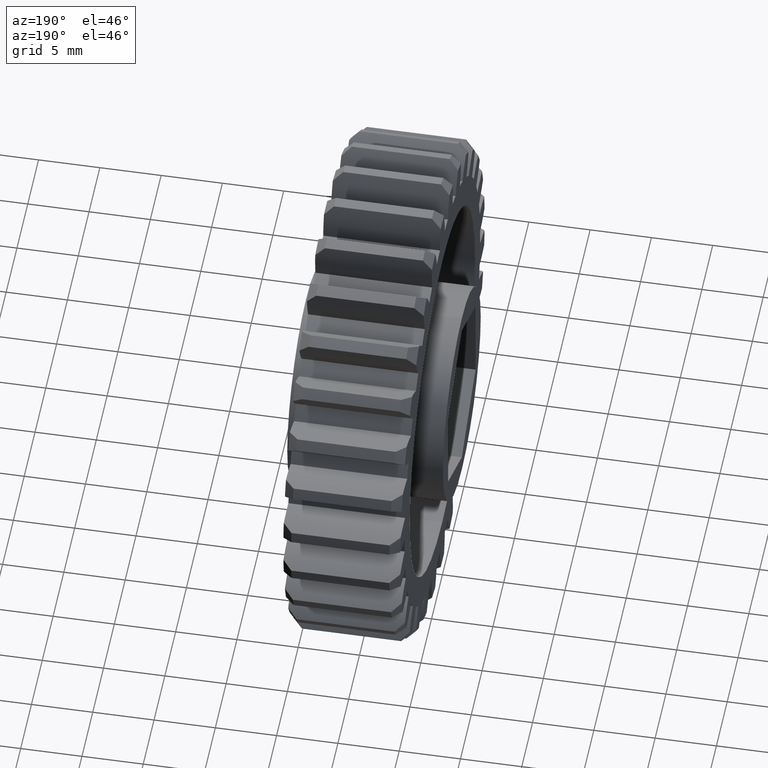
[diagram: clean part render]
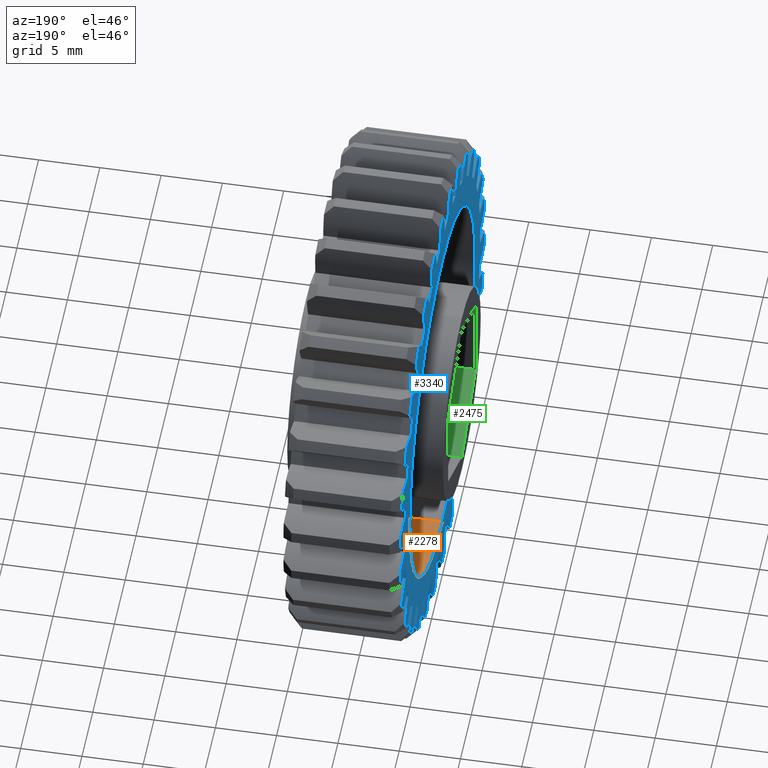
[diagram: same view with three faces highlighted in distinct colors, each labeled with its STEP entity id]
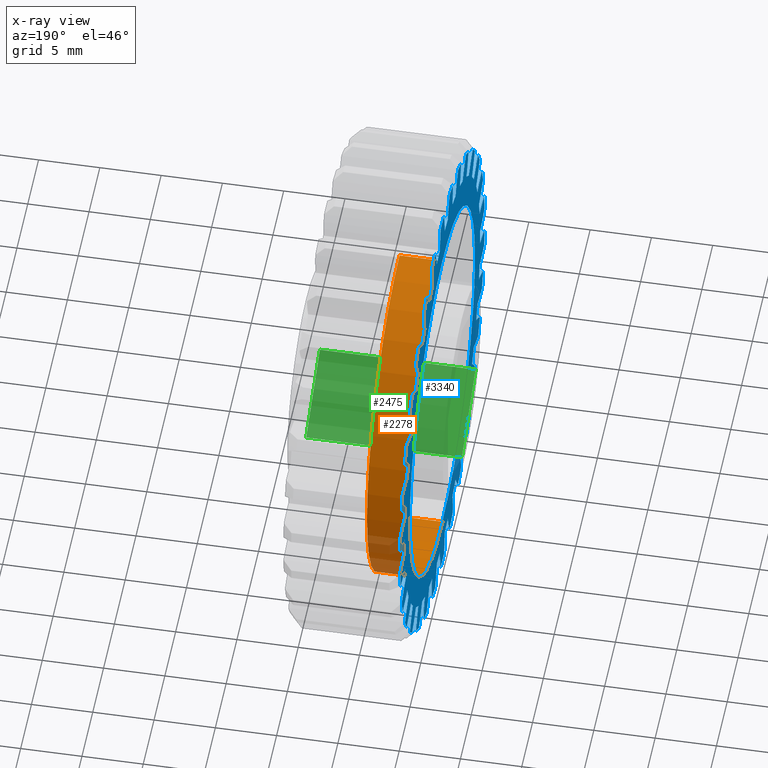
[diagram: x-ray of the same camera — body ghosted, the three highlighted faces saturated]
A machine part, auxiliary view with three faces highlighted in distinct colors.
The next image is the same camera in x-ray (body ghosted, the three faces saturated) — at least one of them is partly hidden behind the body in this view.
Their STEP definitions:

[orange] entity #2278 — the highlighted cylindrical surface (partial cylindrical patch) has radius 15.0812 mm, axis along (-1, 0, 0).
#155 = CARTESIAN_POINT ( 'NONE',  ( 0.0000000000000000000, 7.271340369937410515E-17, -0.5937500000000000000 ) ) ;
#453 = CARTESIAN_POINT ( 'NONE',  ( 0.0000000000000000000, 0.0000000000000000000, 0.0000000000000000000 ) ) ;
#457 = ORIENTED_EDGE ( 'NONE', *, *, #1772, .T. ) ;
#526 = VECTOR ( 'NONE', #6949, 39.37007874015748143 ) ;
#547 = VERTEX_POINT ( 'NONE', #4065 ) ;
#1021 = DIRECTION ( 'NONE',  ( 0.0000000000000000000, 0.0000000000000000000, 1.000000000000000000 ) ) ;
#1109 = CIRCLE ( 'NONE', #5163, 0.5937500000000000000 ) ;
#1312 = EDGE_LOOP ( 'NONE', ( #6034, #457, #5935, #3671 ) ) ;
#1565 = CYLINDRICAL_SURFACE ( 'NONE', #4038, 0.5937500000000000000 ) ;
#1772 = EDGE_CURVE ( 'NONE', #3015, #547, #2748, .T. ) ;
#1895 = LINE ( 'NONE', #4095, #6929 ) ;
#2278 = ADVANCED_FACE ( 'NONE', ( #6520 ), #1565, .F. ) ;
#2543 = LINE ( 'NONE', #4735, #526 ) ;
#2557 = VERTEX_POINT ( 'NONE', #3588 ) ;
#2559 = CARTESIAN_POINT ( 'NONE',  ( 0.1375000000000000111, 0.0000000000000000000, 0.0000000000000000000 ) ) ;
#2664 = DIRECTION ( 'NONE',  ( 1.000000000000000000, -0.0000000000000000000, 0.0000000000000000000 ) ) ;
#2748 = CIRCLE ( 'NONE', #4472, 0.5937500000000000000 ) ;
#3015 = VERTEX_POINT ( 'NONE', #4755 ) ;
#3123 = EDGE_CURVE ( 'NONE', #3729, #2557, #1109, .T. ) ;
#3588 = CARTESIAN_POINT ( 'NONE',  ( 0.0000000000000000000, 0.0000000000000000000, 0.5937500000000000000 ) ) ;
#3671 = ORIENTED_EDGE ( 'NONE', *, *, #3123, .F. ) ;
#3729 = VERTEX_POINT ( 'NONE', #155 ) ;
#3776 = CARTESIAN_POINT ( 'NONE',  ( 0.1375000000000000111, 0.0000000000000000000, 0.0000000000000000000 ) ) ;
#4038 = AXIS2_PLACEMENT_3D ( 'NONE', #3776, #5968, #1021 ) ;
#4065 = CARTESIAN_POINT ( 'NONE',  ( 0.1375000000000000111, 0.0000000000000000000, 0.5937500000000000000 ) ) ;
#4095 = CARTESIAN_POINT ( 'NONE',  ( 0.1375000000000000111, 7.271340369937410515E-17, -0.5937500000000000000 ) ) ;
#4472 = AXIS2_PLACEMENT_3D ( 'NONE', #2559, #4752, #6963 ) ;
#4735 = CARTESIAN_POINT ( 'NONE',  ( 0.1375000000000000111, 0.0000000000000000000, 0.5937500000000000000 ) ) ;
#4752 = DIRECTION ( 'NONE',  ( 1.000000000000000000, -0.0000000000000000000, 0.0000000000000000000 ) ) ;
#4755 = CARTESIAN_POINT ( 'NONE',  ( 0.1375000000000000111, 7.271340369937410515E-17, -0.5937500000000000000 ) ) ;
#4863 = DIRECTION ( 'NONE',  ( 0.0000000000000000000, 0.0000000000000000000, -1.000000000000000000 ) ) ;
#5163 = AXIS2_PLACEMENT_3D ( 'NONE', #453, #2664, #4863 ) ;
#5361 = EDGE_CURVE ( 'NONE', #3015, #3729, #1895, .T. ) ;
#5935 = ORIENTED_EDGE ( 'NONE', *, *, #6653, .T. ) ;
#5968 = DIRECTION ( 'NONE',  ( -1.000000000000000000, 0.0000000000000000000, 0.0000000000000000000 ) ) ;
#6034 = ORIENTED_EDGE ( 'NONE', *, *, #5361, .F. ) ;
#6301 = DIRECTION ( 'NONE',  ( -1.000000000000000000, 0.0000000000000000000, 0.0000000000000000000 ) ) ;
#6520 = FACE_OUTER_BOUND ( 'NONE', #1312, .T. ) ;
#6653 = EDGE_CURVE ( 'NONE', #547, #2557, #2543, .T. ) ;
#6929 = VECTOR ( 'NONE', #6301, 39.37007874015748143 ) ;
#6949 = DIRECTION ( 'NONE',  ( -1.000000000000000000, 0.0000000000000000000, 0.0000000000000000000 ) ) ;
#6963 = DIRECTION ( 'NONE',  ( 0.0000000000000000000, 0.0000000000000000000, -1.000000000000000000 ) ) ;

[blue] entity #3340 — the highlighted planar face has unit normal (1, -0, 0).
#5 = CARTESIAN_POINT ( 'NONE',  ( 0.0000000000000000000, 0.0000000000000000000, 0.0000000000000000000 ) ) ;
#13 = DIRECTION ( 'NONE',  ( 0.0000000000000000000, 0.0000000000000000000, 1.000000000000000000 ) ) ;
#26 = EDGE_CURVE ( 'NONE', #5881, #3080, #2056, .T. ) ;
#37 = EDGE_CURVE ( 'NONE', #4037, #855, #213, .T. ) ;
#54 = EDGE_CURVE ( 'NONE', #6249, #1644, #4731, .T. ) ;
#76 = CIRCLE ( 'NONE', #4123, 0.2999999999999999889 ) ;
#78 = CARTESIAN_POINT ( 'NONE',  ( 0.0000000000000000000, -0.6489829762193536355, 0.3256653025566049742 ) ) ;
#84 = VERTEX_POINT ( 'NONE', #235 ) ;
#88 = DIRECTION ( 'NONE',  ( -1.000000000000000000, -0.0000000000000000000, -0.0000000000000000000 ) ) ;
#90 = CIRCLE ( 'NONE', #4136, 0.2999999999999999334 ) ;
#95 = ORIENTED_EDGE ( 'NONE', *, *, #1521, .T. ) ;
#96 = VERTEX_POINT ( 'NONE', #1900 ) ;
#99 = CIRCLE ( 'NONE', #4143, 0.7700000000000001288 ) ;
#104 = CIRCLE ( 'NONE', #1023, 0.6879999999999998339 ) ;
#105 = DIRECTION ( 'NONE',  ( 1.000000000000000000, -0.0000000000000000000, -0.0000000000000000000 ) ) ;
#114 = ORIENTED_EDGE ( 'NONE', *, *, #5579, .F. ) ;
#129 = CARTESIAN_POINT ( 'NONE',  ( 0.0000000000000000000, 0.0000000000000000000, 0.0000000000000000000 ) ) ;
#141 = AXIS2_PLACEMENT_3D ( 'NONE', #2387, #4584, #6794 ) ;
#146 = DIRECTION ( 'NONE',  ( 0.0000000000000000000, 0.0000000000000000000, 1.000000000000000000 ) ) ;
#155 = CARTESIAN_POINT ( 'NONE',  ( 0.0000000000000000000, 7.271340369937410515E-17, -0.5937500000000000000 ) ) ;
#175 = CARTESIAN_POINT ( 'NONE',  ( 0.0000000000000000000, -0.6394383043351895557, 0.2538949683411179103 ) ) ;
#179 = DIRECTION ( 'NONE',  ( 0.0000000000000000000, 0.0000000000000000000, 1.000000000000000000 ) ) ;
#192 = DIRECTION ( 'NONE',  ( 1.000000000000000000, -0.0000000000000000000, -0.0000000000000000000 ) ) ;
#194 = AXIS2_PLACEMENT_3D ( 'NONE', #7128, #2186, #4389 ) ;
#196 = DIRECTION ( 'NONE',  ( 1.000000000000000000, -0.0000000000000000000, -0.0000000000000000000 ) ) ;
#204 = EDGE_CURVE ( 'NONE', #3336, #4677, #2551, .T. ) ;
#206 = AXIS2_PLACEMENT_3D ( 'NONE', #1241, #3458, #5659 ) ;
#213 = CIRCLE ( 'NONE', #2558, 0.2999999999999999334 ) ;
#222 = CARTESIAN_POINT ( 'NONE',  ( 0.0000000000000000000, 0.7025107648012649531, -0.1836175864402891100 ) ) ;
#229 = AXIS2_PLACEMENT_3D ( 'NONE', #6287, #1332, #3540 ) ;
#231 = CARTESIAN_POINT ( 'NONE',  ( 0.0000000000000000000, 0.7683465519538581479, -0.05043387850064778161 ) ) ;
#233 = CARTESIAN_POINT ( 'NONE',  ( 0.0000000000000000000, 0.1894666733330643837, -0.7463259205575689670 ) ) ;
#234 = ORIENTED_EDGE ( 'NONE', *, *, #3935, .F. ) ;
#235 = CARTESIAN_POINT ( 'NONE',  ( 0.0000000000000000000, -0.7683465519538585919, 0.05043387850064241784 ) ) ;
#244 = VERTEX_POINT ( 'NONE', #336 ) ;
#248 = CARTESIAN_POINT ( 'NONE',  ( 0.0000000000000000000, -0.3404962559839838088, -0.6906245721525480219 ) ) ;
#250 = ORIENTED_EDGE ( 'NONE', *, *, #2687, .T. ) ;
#257 = VERTEX_POINT ( 'NONE', #2578 ) ;
#273 = VERTEX_POINT ( 'NONE', #7023 ) ;
#282 = CARTESIAN_POINT ( 'NONE',  ( 0.0000000000000000000, -0.4390657669892437109, -0.5296841061030121978 ) ) ;
#285 = CIRCLE ( 'NONE', #4328, 0.2999999999999999334 ) ;
#297 = DIRECTION ( 'NONE',  ( -1.000000000000000000, -0.0000000000000000000, -0.0000000000000000000 ) ) ;
#303 = VERTEX_POINT ( 'NONE', #2652 ) ;
#310 = DIRECTION ( 'NONE',  ( -1.000000000000000000, -0.0000000000000000000, -0.0000000000000000000 ) ) ;
#318 = AXIS2_PLACEMENT_3D ( 'NONE', #2508, #4704, #6920 ) ;
#319 = CARTESIAN_POINT ( 'NONE',  ( 0.0000000000000000000, -0.5670915174108238643, 0.4534798822356999604 ) ) ;
#322 = DIRECTION ( 'NONE',  ( 1.000000000000000000, -0.0000000000000000000, -0.0000000000000000000 ) ) ;
#323 = VERTEX_POINT ( 'NONE', #3227 ) ;
#328 = EDGE_CURVE ( 'NONE', #96, #2120, #6328, .T. ) ;
#329 = CIRCLE ( 'NONE', #4378, 0.6879999999999998339 ) ;
#330 = CARTESIAN_POINT ( 'NONE',  ( 0.0000000000000000000, 0.3336169947953541715, -0.6449313866571635412 ) ) ;
#334 = AXIS2_PLACEMENT_3D ( 'NONE', #4624, #1421, #3629 ) ;
#335 = VERTEX_POINT ( 'NONE', #1602 ) ;
#336 = CARTESIAN_POINT ( 'NONE',  ( 0.0000000000000000000, -0.6814061959941576374, 0.3585883378761398621 ) ) ;
#346 = VERTEX_POINT ( 'NONE', #3264 ) ;
#363 = ORIENTED_EDGE ( 'NONE', *, *, #3833, .F. ) ;
#368 = EDGE_CURVE ( 'NONE', #6503, #6700, #6437, .T. ) ;
#370 = VERTEX_POINT ( 'NONE', #4961 ) ;
#372 = ORIENTED_EDGE ( 'NONE', *, *, #3942, .F. ) ;
#373 = DIRECTION ( 'NONE',  ( 1.000000000000000000, -0.0000000000000000000, -0.0000000000000000000 ) ) ;
#376 = DIRECTION ( 'NONE',  ( 0.0000000000000000000, 1.821231995776175873E-15, 1.000000000000000000 ) ) ;
#384 = ORIENTED_EDGE ( 'NONE', *, *, #4283, .F. ) ;
#393 = ORIENTED_EDGE ( 'NONE', *, *, #2209, .T. ) ;
#397 = DIRECTION ( 'NONE',  ( 0.0000000000000000000, -0.2079116908177597589, -0.9781476007338055778 ) ) ;
#409 = CARTESIAN_POINT ( 'NONE',  ( 0.0000000000000000000, 0.1856646018324557834, -0.6624746452705910782 ) ) ;
#419 = CARTESIAN_POINT ( 'NONE',  ( 0.0000000000000000000, 0.6665521730836446723, -0.1704470608648644414 ) ) ;
#441 = AXIS2_PLACEMENT_3D ( 'NONE', #5041, #88, #2306 ) ;
#446 = DIRECTION ( 'NONE',  ( 0.0000000000000000000, 1.821231995776175873E-15, 1.000000000000000000 ) ) ;
#453 = CARTESIAN_POINT ( 'NONE',  ( 0.0000000000000000000, 0.0000000000000000000, 0.0000000000000000000 ) ) ;
#455 = DIRECTION ( 'NONE',  ( -1.000000000000000000, -0.0000000000000000000, -0.0000000000000000000 ) ) ;
#456 = AXIS2_PLACEMENT_3D ( 'NONE', #1203, #3414, #5615 ) ;
#462 = VERTEX_POINT ( 'NONE', #659 ) ;
#466 = AXIS2_PLACEMENT_3D ( 'NONE', #4662, #6874, #1926 ) ;
#474 = DIRECTION ( 'NONE',  ( 1.000000000000000000, -0.0000000000000000000, -0.0000000000000000000 ) ) ;
#476 = CARTESIAN_POINT ( 'NONE',  ( 0.0000000000000000000, -0.6394383043351861140, -0.2538949683411265701 ) ) ;
#480 = EDGE_CURVE ( 'NONE', #257, #3977, #6209, .T. ) ;
#484 = AXIS2_PLACEMENT_3D ( 'NONE', #3905, #6112, #1158 ) ;
#489 = CARTESIAN_POINT ( 'NONE',  ( 0.0000000000000000000, 0.0000000000000000000, 0.0000000000000000000 ) ) ;
#490 = VERTEX_POINT ( 'NONE', #3452 ) ;
#498 = VERTEX_POINT ( 'NONE', #6777 ) ;
#508 = DIRECTION ( 'NONE',  ( 1.000000000000000000, -0.0000000000000000000, -0.0000000000000000000 ) ) ;
#509 = DIRECTION ( 'NONE',  ( 1.000000000000000000, -0.0000000000000000000, -0.0000000000000000000 ) ) ;
#512 = AXIS2_PLACEMENT_3D ( 'NONE', #5452, #509, #2708 ) ;
#521 = ORIENTED_EDGE ( 'NONE', *, *, #3972, .T. ) ;
#532 = CIRCLE ( 'NONE', #1099, 0.7700000000000002398 ) ;
#533 = EDGE_CURVE ( 'NONE', #3382, #998, #940, .T. ) ;
#540 = CARTESIAN_POINT ( 'NONE',  ( 0.0000000000000000000, -0.7253354619407045289, -0.03354490070159736603 ) ) ;
#554 = AXIS2_PLACEMENT_3D ( 'NONE', #2215, #4410, #6622 ) ;
#561 = CIRCLE ( 'NONE', #1484, 0.2999999999999999334 ) ;
#562 = CARTESIAN_POINT ( 'NONE',  ( 0.0000000000000000000, -0.2391870083714269235, -0.6450841611962943034 ) ) ;
#564 = DIRECTION ( 'NONE',  ( 0.0000000000000000000, 5.463695987328526437E-15, 1.000000000000000000 ) ) ;
#569 = AXIS2_PLACEMENT_3D ( 'NONE', #6783, #1831, #4040 ) ;
#576 = VERTEX_POINT ( 'NONE', #1308 ) ;
#582 = EDGE_CURVE ( 'NONE', #5153, #3115, #5506, .T. ) ;
#591 = CARTESIAN_POINT ( 'NONE',  ( 0.0000000000000000000, -0.3680807370392856770, -0.5812577492133899071 ) ) ;
#597 = CARTESIAN_POINT ( 'NONE',  ( 0.0000000000000000000, -0.6065259132548467269, 0.3992030927512830174 ) ) ;
#606 = DIRECTION ( 'NONE',  ( 0.0000000000000000000, -0.9945218953682728458, 0.1045284632676570791 ) ) ;
#608 = EDGE_CURVE ( 'NONE', #335, #2968, #4245, .T. ) ;
#613 = CARTESIAN_POINT ( 'NONE',  ( 0.0000000000000000000, 0.2560440807632021198, 0.6794690731872511380 ) ) ;
#637 = ORIENTED_EDGE ( 'NONE', *, *, #1614, .F. ) ;
#641 = EDGE_CURVE ( 'NONE', #5621, #1353, #3718, .T. ) ;
#653 = DIRECTION ( 'NONE',  ( 1.000000000000000000, -0.0000000000000000000, -0.0000000000000000000 ) ) ;
#659 = CARTESIAN_POINT ( 'NONE',  ( 0.0000000000000000000, -0.6782527753606805154, -0.1154000550932888364 ) ) ;
#664 = CARTESIAN_POINT ( 'NONE',  ( 0.0000000000000000000, 0.5516038700391342475, -0.5372459125557407233 ) ) ;
#671 = DIRECTION ( 'NONE',  ( 0.0000000000000000000, 0.2079116908177890410, 0.9781476007337993606 ) ) ;
#682 = CIRCLE ( 'NONE', #5644, 0.6879999999999998339 ) ;
#700 = EDGE_CURVE ( 'NONE', #346, #1216, #6573, .T. ) ;
#712 = CARTESIAN_POINT ( 'NONE',  ( 0.0000000000000000000, -0.6874243454850025303, 0.02813839431302777444 ) ) ;
#727 = CARTESIAN_POINT ( 'NONE',  ( 0.0000000000000000000, 0.0000000000000000000, 0.0000000000000000000 ) ) ;
#729 = DIRECTION ( 'NONE',  ( 0.0000000000000000000, -2.753353101070388220E-14, 1.000000000000000000 ) ) ;
#731 = VERTEX_POINT ( 'NONE', #1519 ) ;
#733 = CARTESIAN_POINT ( 'NONE',  ( 0.0000000000000000000, 0.0000000000000000000, 0.0000000000000000000 ) ) ;
#741 = DIRECTION ( 'NONE',  ( 0.0000000000000000000, 0.0000000000000000000, -1.000000000000000000 ) ) ;
#747 = CIRCLE ( 'NONE', #4786, 0.2999999999999999334 ) ;
#751 = ORIENTED_EDGE ( 'NONE', *, *, #4298, .T. ) ;
#752 = EDGE_CURVE ( 'NONE', #576, #1391, #2851, .T. ) ;
#758 = DIRECTION ( 'NONE',  ( 1.000000000000000000, -0.0000000000000000000, -0.0000000000000000000 ) ) ;
#761 = ORIENTED_EDGE ( 'NONE', *, *, #3298, .F. ) ;
#762 = DIRECTION ( 'NONE',  ( 0.0000000000000000000, 1.421085471520200372E-14, 1.000000000000000000 ) ) ;
#777 = AXIS2_PLACEMENT_3D ( 'NONE', #2145, #4344, #6554 ) ;
#780 = VERTEX_POINT ( 'NONE', #2674 ) ;
#785 = EDGE_CURVE ( 'NONE', #273, #2164, #6901, .T. ) ;
#796 = AXIS2_PLACEMENT_3D ( 'NONE', #1588, #3797, #5994 ) ;
#819 = VERTEX_POINT ( 'NONE', #7116 ) ;
#825 = CARTESIAN_POINT ( 'NONE',  ( 0.0000000000000000000, 0.0000000000000000000, 0.0000000000000000000 ) ) ;
#832 = DIRECTION ( 'NONE',  ( 1.000000000000000000, -0.0000000000000000000, -0.0000000000000000000 ) ) ;
#834 = ORIENTED_EDGE ( 'NONE', *, *, #5799, .F. ) ;
#835 = EDGE_CURVE ( 'NONE', #84, #855, #7014, .T. ) ;
#852 = CARTESIAN_POINT ( 'NONE',  ( 0.0000000000000000000, 0.4390657669892546466, -0.5296841061030030939 ) ) ;
#855 = VERTEX_POINT ( 'NONE', #5528 ) ;
#868 = EDGE_CURVE ( 'NONE', #5255, #3848, #4030, .T. ) ;
#875 = DIRECTION ( 'NONE',  ( 0.0000000000000000000, 0.0000000000000000000, 1.000000000000000000 ) ) ;
#877 = DIRECTION ( 'NONE',  ( 0.0000000000000000000, 0.2079116908177780776, -0.9781476007338016920 ) ) ;
#886 = EDGE_CURVE ( 'NONE', #346, #6239, #6797, .T. ) ;
#888 = CARTESIAN_POINT ( 'NONE',  ( 0.0000000000000000000, 0.1856646018324470959, 0.6624746452705935207 ) ) ;
#889 = ORIENTED_EDGE ( 'NONE', *, *, #4028, .F. ) ;
#893 = CIRCLE ( 'NONE', #1584, 0.7700000000000001288 ) ;
#894 = CIRCLE ( 'NONE', #4948, 0.2999999999999999334 ) ;
#907 = AXIS2_PLACEMENT_3D ( 'NONE', #6979, #5347, #397 ) ;
#909 = CARTESIAN_POINT ( 'NONE',  ( 0.0000000000000000000, 0.0000000000000000000, 0.0000000000000000000 ) ) ;
#917 = AXIS2_PLACEMENT_3D ( 'NONE', #1532, #3740, #5930 ) ;
#921 = DIRECTION ( 'NONE',  ( 0.0000000000000000000, -9.106159978880879367E-16, 1.000000000000000000 ) ) ;
#927 = DIRECTION ( 'NONE',  ( 1.000000000000000000, -0.0000000000000000000, -0.0000000000000000000 ) ) ;
#936 = DIRECTION ( 'NONE',  ( 0.0000000000000000000, 0.9945218953682709584, 0.1045284632676754533 ) ) ;
#940 = CIRCLE ( 'NONE', #6083, 0.6879999999999998339 ) ;
#942 = CARTESIAN_POINT ( 'NONE',  ( 0.0000000000000000000, -0.4808875712511961331, 0.4920275844057176995 ) ) ;
#943 = DIRECTION ( 'NONE',  ( 1.000000000000000000, -0.0000000000000000000, -0.0000000000000000000 ) ) ;
#950 = DIRECTION ( 'NONE',  ( 0.0000000000000000000, 0.8660254037844592467, 0.4999999999999642508 ) ) ;
#963 = EDGE_CURVE ( 'NONE', #5334, #2164, #5655, .T. ) ;
#964 = ORIENTED_EDGE ( 'NONE', *, *, #6667, .F. ) ;
#975 = AXIS2_PLACEMENT_3D ( 'NONE', #6103, #1150, #3362 ) ;
#976 = DIRECTION ( 'NONE',  ( -1.000000000000000000, -0.0000000000000000000, -0.0000000000000000000 ) ) ;
#984 = CARTESIAN_POINT ( 'NONE',  ( 0.0000000000000000000, -0.1091793394158861452, 0.7178556014662877960 ) ) ;
#992 = AXIS2_PLACEMENT_3D ( 'NONE', #6479, #1517, #3725 ) ;
#998 = VERTEX_POINT ( 'NONE', #175 ) ;
#1001 = CIRCLE ( 'NONE', #4124, 0.2999999999999999334 ) ;
#1014 = CARTESIAN_POINT ( 'NONE',  ( 0.0000000000000000000, 0.0000000000000000000, 0.0000000000000000000 ) ) ;
#1019 = AXIS2_PLACEMENT_3D ( 'NONE', #2234, #4426, #6640 ) ;
#1023 = AXIS2_PLACEMENT_3D ( 'NONE', #5055, #105, #2320 ) ;
#1024 = DIRECTION ( 'NONE',  ( 1.000000000000000000, -0.0000000000000000000, -0.0000000000000000000 ) ) ;
#1039 = DIRECTION ( 'NONE',  ( 0.0000000000000000000, 0.0000000000000000000, 1.000000000000000000 ) ) ;
#1042 = EDGE_CURVE ( 'NONE', #5667, #4363, #6948, .T. ) ;
#1050 = CARTESIAN_POINT ( 'NONE',  ( 0.0000000000000000000, -0.7683465519538577038, -0.05043387850065297190 ) ) ;
#1055 = CARTESIAN_POINT ( 'NONE',  ( 0.0000000000000000000, -0.03015648789549173897, -0.7694092449651288579 ) ) ;
#1060 = ORIENTED_EDGE ( 'NONE', *, *, #5203, .F. ) ;
#1081 = ORIENTED_EDGE ( 'NONE', *, *, #2204, .F. ) ;
#1083 = DIRECTION ( 'NONE',  ( 1.000000000000000000, -0.0000000000000000000, -0.0000000000000000000 ) ) ;
#1087 = DIRECTION ( 'NONE',  ( 1.000000000000000000, -0.0000000000000000000, -0.0000000000000000000 ) ) ;
#1099 = AXIS2_PLACEMENT_3D ( 'NONE', #4171, #6384, #1418 ) ;
#1109 = CIRCLE ( 'NONE', #5163, 0.5937500000000000000 ) ;
#1112 = EDGE_CURVE ( 'NONE', #1391, #1216, #7054, .T. ) ;
#1127 = CIRCLE ( 'NONE', #2733, 0.6879999999999998339 ) ;
#1130 = AXIS2_PLACEMENT_3D ( 'NONE', #7160, #2219, #4413 ) ;
#1136 = EDGE_CURVE ( 'NONE', #998, #3711, #6482, .T. ) ;
#1139 = CARTESIAN_POINT ( 'NONE',  ( 0.0000000000000000000, 0.0000000000000000000, 0.0000000000000000000 ) ) ;
#1143 = CIRCLE ( 'NONE', #5190, 0.7700000000000003508 ) ;
#1150 = DIRECTION ( 'NONE',  ( 1.000000000000000000, -0.0000000000000000000, -0.0000000000000000000 ) ) ;
#1158 = DIRECTION ( 'NONE',  ( 0.0000000000000000000, -0.4067366430757937690, -0.9135454576426037532 ) ) ;
#1159 = DIRECTION ( 'NONE',  ( 0.0000000000000000000, 0.0000000000000000000, 1.000000000000000000 ) ) ;
#1167 = DIRECTION ( 'NONE',  ( 0.0000000000000000000, 0.9510565162951528650, -0.3090169943749498382 ) ) ;
#1169 = CARTESIAN_POINT ( 'NONE',  ( 0.0000000000000000000, 0.6762708568267085107, -0.2643757192305765114 ) ) ;
#1177 = EDGE_CURVE ( 'NONE', #3784, #1425, #1962, .T. ) ;
#1180 = ORIENTED_EDGE ( 'NONE', *, *, #3450, .F. ) ;
#1189 = CARTESIAN_POINT ( 'NONE',  ( 0.0000000000000000000, 0.3404962559839984082, -0.6906245721525410275 ) ) ;
#1192 = ORIENTED_EDGE ( 'NONE', *, *, #6447, .F. ) ;
#1203 = CARTESIAN_POINT ( 'NONE',  ( 0.0000000000000000000, 0.0000000000000000000, 0.0000000000000000000 ) ) ;
#1207 = ORIENTED_EDGE ( 'NONE', *, *, #2137, .T. ) ;
#1216 = VERTEX_POINT ( 'NONE', #6184 ) ;
#1230 = DIRECTION ( 'NONE',  ( 0.0000000000000000000, -2.398081733190338443E-14, 1.000000000000000000 ) ) ;
#1236 = DIRECTION ( 'NONE',  ( 0.0000000000000000000, 0.0000000000000000000, 1.000000000000000000 ) ) ;
#1241 = CARTESIAN_POINT ( 'NONE',  ( 0.0000000000000000000, 0.1922378879617554215, 0.7002009619700753085 ) ) ;
#1245 = EDGE_CURVE ( 'NONE', #1564, #3278, #2095, .T. ) ;
#1249 = AXIS2_PLACEMENT_3D ( 'NONE', #6450, #1489, #3694 ) ;
#1280 = CARTESIAN_POINT ( 'NONE',  ( 0.0000000000000000000, -0.5395986446440534934, 0.4268223315365544113 ) ) ;
#1287 = PLANE ( 'NONE',  #3072 ) ;
#1288 = ORIENTED_EDGE ( 'NONE', *, *, #2008, .T. ) ;
#1295 = DIRECTION ( 'NONE',  ( 0.0000000000000000000, 1.332267629550187691E-14, 1.000000000000000000 ) ) ;
#1296 = DIRECTION ( 'NONE',  ( 0.0000000000000000000, 0.0000000000000000000, 1.000000000000000000 ) ) ;
#1297 = ORIENTED_EDGE ( 'NONE', *, *, #6182, .F. ) ;
#1299 = ORIENTED_EDGE ( 'NONE', *, *, #5863, .F. ) ;
#1308 = CARTESIAN_POINT ( 'NONE',  ( 0.0000000000000000000, 0.09983965969113489658, 0.6807172998776791495 ) ) ;
#1332 = DIRECTION ( 'NONE',  ( 1.000000000000000000, -0.0000000000000000000, -0.0000000000000000000 ) ) ;
#1344 = DIRECTION ( 'NONE',  ( 0.0000000000000000000, 0.0000000000000000000, 1.000000000000000000 ) ) ;
#1353 = VERTEX_POINT ( 'NONE', #4724 ) ;
#1378 = AXIS2_PLACEMENT_3D ( 'NONE', #4552, #6768, #1815 ) ;
#1390 = AXIS2_PLACEMENT_3D ( 'NONE', #613, #2812, #5021 ) ;
#1391 = VERTEX_POINT ( 'NONE', #3133 ) ;
#1400 = EDGE_CURVE ( 'NONE', #3966, #1991, #3950, .T. ) ;
#1404 = CARTESIAN_POINT ( 'NONE',  ( 0.0000000000000000000, 0.5726773110448378779, -0.3812934531492167545 ) ) ;
#1408 = EDGE_CURVE ( 'NONE', #4895, #6290, #1127, .T. ) ;
#1412 = ORIENTED_EDGE ( 'NONE', *, *, #3354, .F. ) ;
#1414 = ORIENTED_EDGE ( 'NONE', *, *, #3127, .T. ) ;
#1418 = DIRECTION ( 'NONE',  ( 0.0000000000000000000, -0.8660254037844513642, -0.4999999999999780176 ) ) ;
#1421 = DIRECTION ( 'NONE',  ( 1.000000000000000000, -0.0000000000000000000, -0.0000000000000000000 ) ) ;
#1425 = VERTEX_POINT ( 'NONE', #5376 ) ;
#1430 = DIRECTION ( 'NONE',  ( -1.000000000000000000, -0.0000000000000000000, -0.0000000000000000000 ) ) ;
#1438 = CARTESIAN_POINT ( 'NONE',  ( 0.0000000000000000000, 0.7410705433721943569, -0.2090800080018214435 ) ) ;
#1441 = ORIENTED_EDGE ( 'NONE', *, *, #641, .F. ) ;
#1445 = CIRCLE ( 'NONE', #5479, 0.6879999999999998339 ) ;
#1447 = CARTESIAN_POINT ( 'NONE',  ( 0.0000000000000000000, -0.6065259132548410648, -0.3992030927512913441 ) ) ;
#1449 = VERTEX_POINT ( 'NONE', #5948 ) ;
#1466 = CARTESIAN_POINT ( 'NONE',  ( 0.0000000000000000000, 0.5102728768395135006, -0.5165833755297799534 ) ) ;
#1468 = CIRCLE ( 'NONE', #3318, 0.2999999999999999334 ) ;
#1484 = AXIS2_PLACEMENT_3D ( 'NONE', #6973, #2025, #4227 ) ;
#1489 = DIRECTION ( 'NONE',  ( 1.000000000000000000, -0.0000000000000000000, -0.0000000000000000000 ) ) ;
#1490 = AXIS2_PLACEMENT_3D ( 'NONE', #6818, #1871, #4073 ) ;
#1493 = AXIS2_PLACEMENT_3D ( 'NONE', #3187, #5397, #446 ) ;
#1501 = DIRECTION ( 'NONE',  ( 1.000000000000000000, -0.0000000000000000000, -0.0000000000000000000 ) ) ;
#1504 = ORIENTED_EDGE ( 'NONE', *, *, #6749, .F. ) ;
#1514 = DIRECTION ( 'NONE',  ( 1.000000000000000000, -0.0000000000000000000, -0.0000000000000000000 ) ) ;
#1516 = CARTESIAN_POINT ( 'NONE',  ( 0.0000000000000000000, 0.6814061959941599689, -0.3585883378761351992 ) ) ;
#1517 = DIRECTION ( 'NONE',  ( -1.000000000000000000, -0.0000000000000000000, -0.0000000000000000000 ) ) ;
#1518 = VERTEX_POINT ( 'NONE', #4941 ) ;
#1519 = CARTESIAN_POINT ( 'NONE',  ( 0.0000000000000000000, 0.1304716807699721481, 0.7588656933325286236 ) ) ;
#1521 = EDGE_CURVE ( 'NONE', #4714, #2313, #4835, .T. ) ;
#1528 = VERTEX_POINT ( 'NONE', #3317 ) ;
#1530 = CIRCLE ( 'NONE', #141, 0.7700000000000002398 ) ;
#1531 = CARTESIAN_POINT ( 'NONE',  ( 0.0000000000000000000, 0.0000000000000000000, 0.0000000000000000000 ) ) ;
#1532 = CARTESIAN_POINT ( 'NONE',  ( 0.0000000000000000000, -0.5670915174108177581, -0.4534798822357075654 ) ) ;
#1547 = CIRCLE ( 'NONE', #2478, 0.2999999999999999334 ) ;
#1551 = EDGE_CURVE ( 'NONE', #2086, #5158, #5052, .T. ) ;
#1564 = VERTEX_POINT ( 'NONE', #4471 ) ;
#1584 = AXIS2_PLACEMENT_3D ( 'NONE', #6395, #1430, #3637 ) ;
#1585 = ORIENTED_EDGE ( 'NONE', *, *, #368, .F. ) ;
#1588 = CARTESIAN_POINT ( 'NONE',  ( 0.0000000000000000000, 0.0000000000000000000, 0.0000000000000000000 ) ) ;
#1590 = ORIENTED_EDGE ( 'NONE', *, *, #2584, .F. ) ;
#1602 = CARTESIAN_POINT ( 'NONE',  ( 0.0000000000000000000, 0.4766445183661182083, -0.6047396159600688659 ) ) ;
#1603 = AXIS2_PLACEMENT_3D ( 'NONE', #3703, #5898, #950 ) ;
#1608 = CIRCLE ( 'NONE', #5653, 0.6879999999999998339 ) ;
#1614 = EDGE_CURVE ( 'NONE', #6480, #5667, #2629, .T. ) ;
#1644 = VERTEX_POINT ( 'NONE', #2913 ) ;
#1664 = DIRECTION ( 'NONE',  ( 1.000000000000000000, -0.0000000000000000000, -0.0000000000000000000 ) ) ;
#1683 = VERTEX_POINT ( 'NONE', #2944 ) ;
#1691 = AXIS2_PLACEMENT_3D ( 'NONE', #5273, #322, #2533 ) ;
#1693 = VERTEX_POINT ( 'NONE', #2986 ) ;
#1699 = ORIENTED_EDGE ( 'NONE', *, *, #785, .F. ) ;
#1701 = CARTESIAN_POINT ( 'NONE',  ( 0.0000000000000000000, 0.6762708568267049580, 0.2643757192305858372 ) ) ;
#1720 = DIRECTION ( 'NONE',  ( 1.000000000000000000, -0.0000000000000000000, -0.0000000000000000000 ) ) ;
#1723 = CIRCLE ( 'NONE', #2637, 0.2999999999999999334 ) ;
#1725 = AXIS2_PLACEMENT_3D ( 'NONE', #6682, #1730, #3927 ) ;
#1729 = CIRCLE ( 'NONE', #6697, 0.6879999999999998339 ) ;
#1730 = DIRECTION ( 'NONE',  ( 1.000000000000000000, -0.0000000000000000000, -0.0000000000000000000 ) ) ;
#1736 = AXIS2_PLACEMENT_3D ( 'NONE', #2191, #4392, #6600 ) ;
#1766 = CARTESIAN_POINT ( 'NONE',  ( 0.0000000000000000000, -0.3917184671453605715, 0.6113864859555731002 ) ) ;
#1771 = ORIENTED_EDGE ( 'NONE', *, *, #1952, .F. ) ;
#1774 = CARTESIAN_POINT ( 'NONE',  ( 0.0000000000000000000, 0.6665521730836424519, 0.1704470608648732399 ) ) ;
#1775 = CARTESIAN_POINT ( 'NONE',  ( 0.0000000000000000000, 0.6782527753606812926, 0.1154000550932841318 ) ) ;
#1782 = CARTESIAN_POINT ( 'NONE',  ( 0.0000000000000000000, -0.7410705433721928026, 0.2090800080018263840 ) ) ;
#1789 = CIRCLE ( 'NONE', #5813, 0.2999999999999999334 ) ;
#1790 = CARTESIAN_POINT ( 'NONE',  ( 0.0000000000000000000, -0.7025107648012635098, -0.1836175864402938285 ) ) ;
#1791 = EDGE_CURVE ( 'NONE', #2086, #3005, #1468, .T. ) ;
#1798 = CARTESIAN_POINT ( 'NONE',  ( 0.0000000000000000000, -0.3336169947953496195, 0.6449313866571658727 ) ) ;
#1800 = AXIS2_PLACEMENT_3D ( 'NONE', #6861, #1915, #4113 ) ;
#1801 = ORIENTED_EDGE ( 'NONE', *, *, #6073, .F. ) ;
#1802 = ORIENTED_EDGE ( 'NONE', *, *, #4945, .T. ) ;
#1803 = VERTEX_POINT ( 'NONE', #2049 ) ;
#1807 = DIRECTION ( 'NONE',  ( 1.000000000000000000, -0.0000000000000000000, -0.0000000000000000000 ) ) ;
#1810 = CARTESIAN_POINT ( 'NONE',  ( 0.0000000000000000000, 0.04245706296450488249, 0.7248683953078953746 ) ) ;
#1815 = DIRECTION ( 'NONE',  ( 0.0000000000000000000, 0.7431448254773754813, -0.6691306063588789987 ) ) ;
#1821 = ORIENTED_EDGE ( 'NONE', *, *, #4087, .F. ) ;
#1830 = CIRCLE ( 'NONE', #2741, 0.2999999999999999334 ) ;
#1831 = DIRECTION ( 'NONE',  ( 1.000000000000000000, -0.0000000000000000000, -0.0000000000000000000 ) ) ;
#1833 = CIRCLE ( 'NONE', #2951, 0.2999999999999999889 ) ;
#1835 = ORIENTED_EDGE ( 'NONE', *, *, #1245, .F. ) ;
#1838 = CIRCLE ( 'NONE', #2746, 0.7700000000000002398 ) ;
#1839 = CARTESIAN_POINT ( 'NONE',  ( 0.0000000000000000000, 0.6874243454850025303, -0.02813839431303257616 ) ) ;
#1845 = AXIS2_PLACEMENT_3D ( 'NONE', #7148, #2206, #4403 ) ;
#1848 = CARTESIAN_POINT ( 'NONE',  ( 0.0000000000000000000, 0.2853976109132129180, 0.7151560694596889034 ) ) ;
#1854 = AXIS2_PLACEMENT_3D ( 'NONE', #984, #4856, #7065 ) ;
#1859 = ORIENTED_EDGE ( 'NONE', *, *, #26, .F. ) ;
#1865 = DIRECTION ( 'NONE',  ( 0.0000000000000000000, 0.0000000000000000000, 1.000000000000000000 ) ) ;
#1871 = DIRECTION ( 'NONE',  ( 1.000000000000000000, -0.0000000000000000000, -0.0000000000000000000 ) ) ;
#1873 = ORIENTED_EDGE ( 'NONE', *, *, #3958, .T. ) ;
#1900 = CARTESIAN_POINT ( 'NONE',  ( 0.0000000000000000000, -0.1894666733330596098, 0.7463259205575701882 ) ) ;
#1915 = DIRECTION ( 'NONE',  ( 1.000000000000000000, -0.0000000000000000000, -0.0000000000000000000 ) ) ;
#1916 = VERTEX_POINT ( 'NONE', #562 ) ;
#1926 = DIRECTION ( 'NONE',  ( 0.0000000000000000000, 2.618020993928252892E-15, 1.000000000000000000 ) ) ;
#1933 = EDGE_CURVE ( 'NONE', #2800, #7070, #5526, .T. ) ;
#1936 = AXIS2_PLACEMENT_3D ( 'NONE', #7005, #2060, #4266 ) ;
#1940 = AXIS2_PLACEMENT_3D ( 'NONE', #3360, #5561, #606 ) ;
#1951 = AXIS2_PLACEMENT_3D ( 'NONE', #3484, #5680, #729 ) ;
#1952 = EDGE_CURVE ( 'NONE', #2968, #2959, #2641, .T. ) ;
#1953 = AXIS2_PLACEMENT_3D ( 'NONE', #540, #2745, #4954 ) ;
#1959 = DIRECTION ( 'NONE',  ( 0.0000000000000000000, -2.664535259100375381E-14, 1.000000000000000000 ) ) ;
#1962 = CIRCLE ( 'NONE', #484, 0.7700000000000002398 ) ;
#1964 = DIRECTION ( 'NONE',  ( 1.000000000000000000, -0.0000000000000000000, -0.0000000000000000000 ) ) ;
#1971 = EDGE_CURVE ( 'NONE', #4489, #1353, #5181, .T. ) ;
#1972 = EDGE_CURVE ( 'NONE', #5289, #5070, #2978, .T. ) ;
#1989 = EDGE_CURVE ( 'NONE', #2120, #2925, #4828, .T. ) ;
#1991 = VERTEX_POINT ( 'NONE', #6130 ) ;
#1999 = EDGE_CURVE ( 'NONE', #96, #4264, #6691, .T. ) ;
#2003 = VERTEX_POINT ( 'NONE', #4504 ) ;
#2004 = CARTESIAN_POINT ( 'NONE',  ( 0.0000000000000000000, 0.0000000000000000000, 0.0000000000000000000 ) ) ;
#2008 = EDGE_CURVE ( 'NONE', #6129, #1449, #5404, .T. ) ;
#2011 = DIRECTION ( 'NONE',  ( 1.000000000000000000, -0.0000000000000000000, -0.0000000000000000000 ) ) ;
#2012 = CARTESIAN_POINT ( 'NONE',  ( 0.0000000000000000000, 0.6065259132548438403, 0.3992030927512871252 ) ) ;
#2020 = ORIENTED_EDGE ( 'NONE', *, *, #3215, .F. ) ;
#2022 = EDGE_CURVE ( 'NONE', #4102, #3711, #99, .T. ) ;
#2025 = DIRECTION ( 'NONE',  ( 1.000000000000000000, -0.0000000000000000000, -0.0000000000000000000 ) ) ;
#2029 = DIRECTION ( 'NONE',  ( 0.0000000000000000000, 0.5877852522925057777, 0.8090169943749236925 ) ) ;
#2036 = ORIENTED_EDGE ( 'NONE', *, *, #5459, .F. ) ;
#2040 = DIRECTION ( 'NONE',  ( 0.0000000000000000000, 0.0000000000000000000, 1.000000000000000000 ) ) ;
#2041 = DIRECTION ( 'NONE',  ( 1.000000000000000000, -0.0000000000000000000, 0.0000000000000000000 ) ) ;
#2046 = CIRCLE ( 'NONE', #6075, 0.7700000000000002398 ) ;
#2047 = VERTEX_POINT ( 'NONE', #712 ) ;
#2048 = CIRCLE ( 'NONE', #6080, 0.7700000000000002398 ) ;
#2049 = CARTESIAN_POINT ( 'NONE',  ( 0.0000000000000000000, 0.6394383043351914431, -0.2538949683411136915 ) ) ;
#2056 = CIRCLE ( 'NONE', #569, 0.2999999999999999334 ) ;
#2060 = DIRECTION ( 'NONE',  ( 1.000000000000000000, -0.0000000000000000000, -0.0000000000000000000 ) ) ;
#2062 = AXIS2_PLACEMENT_3D ( 'NONE', #6625, #1664, #3869 ) ;
#2086 = VERTEX_POINT ( 'NONE', #2415 ) ;
#2087 = ORIENTED_EDGE ( 'NONE', *, *, #1177, .T. ) ;
#2088 = VERTEX_POINT ( 'NONE', #4613 ) ;
#2095 = CIRCLE ( 'NONE', #4066, 0.6879999999999998339 ) ;
#2102 = ORIENTED_EDGE ( 'NONE', *, *, #608, .F. ) ;
#2104 = DIRECTION ( 'NONE',  ( 0.0000000000000000000, 1.953992523340275511E-14, 1.000000000000000000 ) ) ;
#2108 = DIRECTION ( 'NONE',  ( 1.000000000000000000, -0.0000000000000000000, -0.0000000000000000000 ) ) ;
#2118 = DIRECTION ( 'NONE',  ( 0.0000000000000000000, 0.4067366430758034279, -0.9135454576425993123 ) ) ;
#2120 = VERTEX_POINT ( 'NONE', #5220 ) ;
#2125 = DIRECTION ( 'NONE',  ( -1.000000000000000000, -0.0000000000000000000, -0.0000000000000000000 ) ) ;
#2128 = ORIENTED_EDGE ( 'NONE', *, *, #2022, .T. ) ;
#2136 = DIRECTION ( 'NONE',  ( 0.0000000000000000000, 5.463695987328528015E-15, 1.000000000000000000 ) ) ;
#2137 = EDGE_CURVE ( 'NONE', #257, #5535, #2048, .T. ) ;
#2142 = CARTESIAN_POINT ( 'NONE',  ( 0.0000000000000000000, 0.6489829762193513041, -0.3256653025566094706 ) ) ;
#2145 = CARTESIAN_POINT ( 'NONE',  ( 0.0000000000000000000, 0.1091793394158812880, 0.7178556014662886842 ) ) ;
#2146 = EDGE_CURVE ( 'NONE', #1518, #2924, #532, .T. ) ;
#2159 = CARTESIAN_POINT ( 'NONE',  ( 0.0000000000000000000, -0.1922378879617506753, -0.7002009619700766407 ) ) ;
#2160 = EDGE_CURVE ( 'NONE', #6239, #4399, #6425, .T. ) ;
#2164 = VERTEX_POINT ( 'NONE', #2548 ) ;
#2165 = CIRCLE ( 'NONE', #6204, 0.2999999999999999334 ) ;
#2168 = DIRECTION ( 'NONE',  ( 0.0000000000000000000, 0.0000000000000000000, 1.000000000000000000 ) ) ;
#2176 = AXIS2_PLACEMENT_3D ( 'NONE', #5892, #943, #3143 ) ;
#2183 = CIRCLE ( 'NONE', #6222, 0.2999999999999999334 ) ;
#2186 = DIRECTION ( 'NONE',  ( 1.000000000000000000, -0.0000000000000000000, -0.0000000000000000000 ) ) ;
#2188 = CIRCLE ( 'NONE', #6230, 0.2999999999999999334 ) ;
#2190 = EDGE_CURVE ( 'NONE', #1803, #2970, #1833, .T. ) ;
#2191 = CARTESIAN_POINT ( 'NONE',  ( 0.0000000000000000000, 0.0000000000000000000, 0.0000000000000000000 ) ) ;
#2195 = AXIS2_PLACEMENT_3D ( 'NONE', #6989, #2041, #4243 ) ;
#2204 = EDGE_CURVE ( 'NONE', #4489, #6480, #4226, .T. ) ;
#2206 = DIRECTION ( 'NONE',  ( -1.000000000000000000, -0.0000000000000000000, -0.0000000000000000000 ) ) ;
#2209 = EDGE_CURVE ( 'NONE', #2856, #2375, #4710, .T. ) ;
#2215 = CARTESIAN_POINT ( 'NONE',  ( 0.0000000000000000000, 0.0000000000000000000, 0.0000000000000000000 ) ) ;
#2216 = AXIS2_PLACEMENT_3D ( 'NONE', #1701, #3902, #6110 ) ;
#2219 = DIRECTION ( 'NONE',  ( 1.000000000000000000, -0.0000000000000000000, -0.0000000000000000000 ) ) ;
#2221 = CARTESIAN_POINT ( 'NONE',  ( 0.0000000000000000000, 0.6512497080986555664, -0.4108209070889856096 ) ) ;
#2229 = DIRECTION ( 'NONE',  ( 1.000000000000000000, -0.0000000000000000000, -0.0000000000000000000 ) ) ;
#2234 = CARTESIAN_POINT ( 'NONE',  ( 0.0000000000000000000, 0.0000000000000000000, 0.0000000000000000000 ) ) ;
#2246 = EDGE_CURVE ( 'NONE', #3005, #5592, #329, .T. ) ;
#2255 = CARTESIAN_POINT ( 'NONE',  ( 0.0000000000000000000, 0.3404962559839886382, 0.6906245721525456904 ) ) ;
#2260 = AXIS2_PLACEMENT_3D ( 'NONE', #2159, #4362, #6572 ) ;
#2297 = DIRECTION ( 'NONE',  ( 1.000000000000000000, -0.0000000000000000000, -0.0000000000000000000 ) ) ;
#2301 = CIRCLE ( 'NONE', #6338, 0.2999999999999999334 ) ;
#2306 = DIRECTION ( 'NONE',  ( 0.0000000000000000000, 0.4067366430757851647, 0.9135454576426076390 ) ) ;
#2313 = VERTEX_POINT ( 'NONE', #1055 ) ;
#2320 = DIRECTION ( 'NONE',  ( 0.0000000000000000000, -2.220446049250313396E-14, 1.000000000000000000 ) ) ;
#2321 = VERTEX_POINT ( 'NONE', #3267 ) ;
#2323 = EDGE_CURVE ( 'NONE', #244, #3382, #3547, .T. ) ;
#2335 = CARTESIAN_POINT ( 'NONE',  ( 0.0000000000000000000, 0.5516038700391340255, 0.5372459125557410564 ) ) ;
#2336 = CARTESIAN_POINT ( 'NONE',  ( 0.0000000000000000000, 0.1894666733330543085, 0.7463259205575714095 ) ) ;
#2343 = DIRECTION ( 'NONE',  ( -1.000000000000000000, -0.0000000000000000000, -0.0000000000000000000 ) ) ;
#2375 = VERTEX_POINT ( 'NONE', #2255 ) ;
#2386 = EDGE_CURVE ( 'NONE', #5781, #7070, #3089, .T. ) ;
#2387 = CARTESIAN_POINT ( 'NONE',  ( 0.0000000000000000000, 0.0000000000000000000, 0.0000000000000000000 ) ) ;
#2401 = AXIS2_PLACEMENT_3D ( 'NONE', #1466, #3676, #5875 ) ;
#2410 = ORIENTED_EDGE ( 'NONE', *, *, #1971, .T. ) ;
#2412 = DIRECTION ( 'NONE',  ( 0.0000000000000000000, 0.0000000000000000000, 1.000000000000000000 ) ) ;
#2415 = CARTESIAN_POINT ( 'NONE',  ( 0.0000000000000000000, -0.6512497080986521247, -0.4108209070889902725 ) ) ;
#2417 = DIRECTION ( 'NONE',  ( 0.0000000000000000000, 7.114187483500686426E-15, 1.000000000000000000 ) ) ;
#2422 = AXIS2_PLACEMENT_3D ( 'NONE', #3687, #5884, #936 ) ;
#2427 = AXIS2_PLACEMENT_3D ( 'NONE', #4859, #7067, #2118 ) ;
#2432 = AXIS2_PLACEMENT_3D ( 'NONE', #2716, #4922, #7129 ) ;
#2435 = DIRECTION ( 'NONE',  ( 1.000000000000000000, -0.0000000000000000000, -0.0000000000000000000 ) ) ;
#2459 = CARTESIAN_POINT ( 'NONE',  ( 0.0000000000000000000, -0.2391870083714359163, 0.6450841611962910838 ) ) ;
#2461 = ORIENTED_EDGE ( 'NONE', *, *, #4668, .F. ) ;
#2478 = AXIS2_PLACEMENT_3D ( 'NONE', #1447, #3652, #5854 ) ;
#2482 = ORIENTED_EDGE ( 'NONE', *, *, #54, .F. ) ;
#2485 = ORIENTED_EDGE ( 'NONE', *, *, #4125, .F. ) ;
#2489 = EDGE_CURVE ( 'NONE', #4677, #2321, #1001, .T. ) ;
#2505 = DIRECTION ( 'NONE',  ( 1.000000000000000000, -0.0000000000000000000, -0.0000000000000000000 ) ) ;
#2508 = CARTESIAN_POINT ( 'NONE',  ( 0.0000000000000000000, 0.0000000000000000000, 0.0000000000000000000 ) ) ;
#2510 = CIRCLE ( 'NONE', #3439, 0.2999999999999999889 ) ;
#2511 = DIRECTION ( 'NONE',  ( 0.0000000000000000000, -0.9510565162951474250, 0.3090169943749666026 ) ) ;
#2523 = DIRECTION ( 'NONE',  ( 0.0000000000000000000, -0.7431448254773846962, -0.6691306063588688957 ) ) ;
#2533 = DIRECTION ( 'NONE',  ( 0.0000000000000000000, -4.553079989440439881E-15, 1.000000000000000000 ) ) ;
#2536 = CIRCLE ( 'NONE', #6582, 0.7700000000000002398 ) ;
#2539 = DIRECTION ( 'NONE',  ( 1.000000000000000000, -0.0000000000000000000, -0.0000000000000000000 ) ) ;
#2548 = CARTESIAN_POINT ( 'NONE',  ( 0.0000000000000000000, 0.7620421292793256862, -0.1104164534996135288 ) ) ;
#2551 = CIRCLE ( 'NONE', #318, 0.6879999999999998339 ) ;
#2557 = VERTEX_POINT ( 'NONE', #3588 ) ;
#2558 = AXIS2_PLACEMENT_3D ( 'NONE', #5151, #192, #2412 ) ;
#2560 = CARTESIAN_POINT ( 'NONE',  ( 0.0000000000000000000, 0.6165484722463395739, -0.3053063729611687482 ) ) ;
#2578 = CARTESIAN_POINT ( 'NONE',  ( 0.0000000000000000000, -0.7224328088714458973, -0.2664410566450180484 ) ) ;
#2580 = DIRECTION ( 'NONE',  ( 0.0000000000000000000, 5.463695987328526437E-15, 1.000000000000000000 ) ) ;
#2584 = EDGE_CURVE ( 'NONE', #3494, #3912, #894, .T. ) ;
#2603 = AXIS2_PLACEMENT_3D ( 'NONE', #7059, #2108, #4310 ) ;
#2607 = ORIENTED_EDGE ( 'NONE', *, *, #868, .F. ) ;
#2629 = CIRCLE ( 'NONE', #6679, 0.6879999999999998339 ) ;
#2637 = AXIS2_PLACEMENT_3D ( 'NONE', #5608, #653, #2855 ) ;
#2641 = CIRCLE ( 'NONE', #1019, 0.6879999999999998339 ) ;
#2652 = CARTESIAN_POINT ( 'NONE',  ( 0.0000000000000000000, 0.3680807370392896738, 0.5812577492133873536 ) ) ;
#2653 = AXIS2_PLACEMENT_3D ( 'NONE', #78, #2297, #4495 ) ;
#2657 = CARTESIAN_POINT ( 'NONE',  ( 0.0000000000000000000, -0.1894666733330492570, -0.7463259205575727417 ) ) ;
#2664 = DIRECTION ( 'NONE',  ( 1.000000000000000000, -0.0000000000000000000, 0.0000000000000000000 ) ) ;
#2665 = DIRECTION ( 'NONE',  ( 0.0000000000000000000, -0.8660254037844363761, 0.5000000000000039968 ) ) ;
#2670 = AXIS2_PLACEMENT_3D ( 'NONE', #3516, #5716, #762 ) ;
#2674 = CARTESIAN_POINT ( 'NONE',  ( 0.0000000000000000000, -0.04387116120149579107, -0.6865998261104006017 ) ) ;
#2676 = DIRECTION ( 'NONE',  ( 0.0000000000000000000, 3.642463991552351747E-15, 1.000000000000000000 ) ) ;
#2687 = EDGE_CURVE ( 'NONE', #2777, #323, #3682, .T. ) ;
#2688 = DIRECTION ( 'NONE',  ( -1.000000000000000000, -0.0000000000000000000, -0.0000000000000000000 ) ) ;
#2695 = ORIENTED_EDGE ( 'NONE', *, *, #7055, .F. ) ;
#2707 = DIRECTION ( 'NONE',  ( 0.0000000000000000000, 3.528636991816341026E-15, 1.000000000000000000 ) ) ;
#2708 = DIRECTION ( 'NONE',  ( 0.0000000000000000000, -9.106159978880879367E-16, 1.000000000000000000 ) ) ;
#2716 = CARTESIAN_POINT ( 'NONE',  ( 0.0000000000000000000, 0.0000000000000000000, 0.0000000000000000000 ) ) ;
#2725 = ORIENTED_EDGE ( 'NONE', *, *, #4174, .F. ) ;
#2733 = AXIS2_PLACEMENT_3D ( 'NONE', #6475, #1514, #3722 ) ;
#2741 = AXIS2_PLACEMENT_3D ( 'NONE', #1169, #3377, #5582 ) ;
#2745 = DIRECTION ( 'NONE',  ( 1.000000000000000000, -0.0000000000000000000, -0.0000000000000000000 ) ) ;
#2746 = AXIS2_PLACEMENT_3D ( 'NONE', #1014, #3220, #5424 ) ;
#2764 = CARTESIAN_POINT ( 'NONE',  ( 0.0000000000000000000, 0.5670915174108209778, 0.4534798822357037351 ) ) ;
#2770 = VERTEX_POINT ( 'NONE', #6141 ) ;
#2777 = VERTEX_POINT ( 'NONE', #1189 ) ;
#2787 = CARTESIAN_POINT ( 'NONE',  ( 0.0000000000000000000, -0.6814061959941526414, -0.3585883378761490770 ) ) ;
#2794 = DIRECTION ( 'NONE',  ( 1.000000000000000000, -0.0000000000000000000, -0.0000000000000000000 ) ) ;
#2800 = VERTEX_POINT ( 'NONE', #1774 ) ;
#2808 = CARTESIAN_POINT ( 'NONE',  ( 0.0000000000000000000, 0.6512497080986561215, 0.4108209070889859982 ) ) ;
#2812 = DIRECTION ( 'NONE',  ( 1.000000000000000000, -0.0000000000000000000, -0.0000000000000000000 ) ) ;
#2846 = ORIENTED_EDGE ( 'NONE', *, *, #1791, .F. ) ;
#2851 = CIRCLE ( 'NONE', #3126, 0.6879999999999998339 ) ;
#2854 = EDGE_CURVE ( 'NONE', #490, #819, #1530, .T. ) ;
#2855 = DIRECTION ( 'NONE',  ( 0.0000000000000000000, 0.0000000000000000000, 1.000000000000000000 ) ) ;
#2856 = VERTEX_POINT ( 'NONE', #1848 ) ;
#2869 = AXIS2_PLACEMENT_3D ( 'NONE', #2921, #5136, #179 ) ;
#2892 = CARTESIAN_POINT ( 'NONE',  ( 0.0000000000000000000, -0.6489829762193489726, -0.3256653025566139670 ) ) ;
#2901 = ORIENTED_EDGE ( 'NONE', *, *, #3479, .F. ) ;
#2910 = VERTEX_POINT ( 'NONE', #5735 ) ;
#2913 = CARTESIAN_POINT ( 'NONE',  ( 0.0000000000000000000, -0.4808875712511893608, -0.4920275844057241388 ) ) ;
#2919 = DIRECTION ( 'NONE',  ( 1.000000000000000000, -0.0000000000000000000, -0.0000000000000000000 ) ) ;
#2921 = CARTESIAN_POINT ( 'NONE',  ( 0.0000000000000000000, 0.1091793394158911551, -0.7178556014662870188 ) ) ;
#2924 = VERTEX_POINT ( 'NONE', #248 ) ;
#2925 = VERTEX_POINT ( 'NONE', #2459 ) ;
#2942 = ORIENTED_EDGE ( 'NONE', *, *, #4753, .T. ) ;
#2943 = ORIENTED_EDGE ( 'NONE', *, *, #3557, .F. ) ;
#2944 = CARTESIAN_POINT ( 'NONE',  ( 0.0000000000000000000, 0.2391870083714399131, -0.6450841611962897515 ) ) ;
#2948 = EDGE_CURVE ( 'NONE', #731, #3708, #3148, .T. ) ;
#2950 = CIRCLE ( 'NONE', #6998, 0.6879999999999998339 ) ;
#2951 = AXIS2_PLACEMENT_3D ( 'NONE', #5327, #373, #2580 ) ;
#2956 = DIRECTION ( 'NONE',  ( 0.0000000000000000000, -5.329070518200751394E-15, 1.000000000000000000 ) ) ;
#2959 = VERTEX_POINT ( 'NONE', #6361 ) ;
#2962 = AXIS2_PLACEMENT_3D ( 'NONE', #6957, #2011, #4207 ) ;
#2968 = VERTEX_POINT ( 'NONE', #852 ) ;
#2970 = VERTEX_POINT ( 'NONE', #3050 ) ;
#2976 = EDGE_CURVE ( 'NONE', #5500, #4748, #4910, .T. ) ;
#2978 = CIRCLE ( 'NONE', #7024, 0.2999999999999999334 ) ;
#2981 = ORIENTED_EDGE ( 'NONE', *, *, #3640, .F. ) ;
#2986 = CARTESIAN_POINT ( 'NONE',  ( 0.0000000000000000000, -0.3193436084457142998, 0.6093961435264174664 ) ) ;
#3000 = EDGE_CURVE ( 'NONE', #5442, #6191, #893, .T. ) ;
#3005 = VERTEX_POINT ( 'NONE', #5836 ) ;
#3011 = VERTEX_POINT ( 'NONE', #2560 ) ;
#3019 = DIRECTION ( 'NONE',  ( -1.000000000000000000, -0.0000000000000000000, -0.0000000000000000000 ) ) ;
#3026 = DIRECTION ( 'NONE',  ( 0.0000000000000000000, -1.821231995776175873E-15, 1.000000000000000000 ) ) ;
#3027 = CARTESIAN_POINT ( 'NONE',  ( 0.0000000000000000000, 0.0000000000000000000, 0.0000000000000000000 ) ) ;
#3030 = EDGE_CURVE ( 'NONE', #1683, #323, #5066, .T. ) ;
#3045 = CIRCLE ( 'NONE', #3985, 0.2999999999999998779 ) ;
#3049 = AXIS2_PLACEMENT_3D ( 'NONE', #4052, #6252, #1295 ) ;
#3050 = CARTESIAN_POINT ( 'NONE',  ( 0.0000000000000000000, 0.7224328088714476737, -0.2664410566450130524 ) ) ;
#3058 = CARTESIAN_POINT ( 'NONE',  ( 0.0000000000000000000, 0.4390657669892472637, 0.5296841061030092002 ) ) ;
#3059 = CARTESIAN_POINT ( 'NONE',  ( 0.0000000000000000000, 0.7410705433721912483, 0.2090800080018316298 ) ) ;
#3072 = AXIS2_PLACEMENT_3D ( 'NONE', #3497, #5693, #741 ) ;
#3080 = VERTEX_POINT ( 'NONE', #419 ) ;
#3089 = CIRCLE ( 'NONE', #7018, 0.7700000000000001288 ) ;
#3091 = ORIENTED_EDGE ( 'NONE', *, *, #2190, .F. ) ;
#3098 = CIRCLE ( 'NONE', #7145, 0.2999999999999999334 ) ;
#3115 = VERTEX_POINT ( 'NONE', #6501 ) ;
#3120 = CARTESIAN_POINT ( 'NONE',  ( 0.0000000000000000000, 0.3917184671453565192, 0.6113864859555758757 ) ) ;
#3121 = VERTEX_POINT ( 'NONE', #3197 ) ;
#3123 = EDGE_CURVE ( 'NONE', #3729, #2557, #1109, .T. ) ;
#3124 = ORIENTED_EDGE ( 'NONE', *, *, #4803, .F. ) ;
#3126 = AXIS2_PLACEMENT_3D ( 'NONE', #4845, #7053, #2104 ) ;
#3127 = EDGE_CURVE ( 'NONE', #5274, #5070, #2046, .T. ) ;
#3128 = DIRECTION ( 'NONE',  ( 0.0000000000000000000, 0.0000000000000000000, 1.000000000000000000 ) ) ;
#3133 = CARTESIAN_POINT ( 'NONE',  ( 0.0000000000000000000, 0.04387116120150046789, 0.6865998261104002687 ) ) ;
#3142 = CARTESIAN_POINT ( 'NONE',  ( 0.0000000000000000000, -0.1304716807699669856, -0.7588656933325294007 ) ) ;
#3143 = DIRECTION ( 'NONE',  ( 0.0000000000000000000, 7.057273983632682052E-15, 1.000000000000000000 ) ) ;
#3148 = CIRCLE ( 'NONE', #6786, 0.7700000000000002398 ) ;
#3178 = CARTESIAN_POINT ( 'NONE',  ( 0.0000000000000000000, -0.7410705433721900270, -0.2090800080018362650 ) ) ;
#3179 = DIRECTION ( 'NONE',  ( 0.0000000000000000000, 0.5877852522924891243, -0.8090169943749357939 ) ) ;
#3182 = CIRCLE ( 'NONE', #992, 0.7700000000000002398 ) ;
#3187 = CARTESIAN_POINT ( 'NONE',  ( 0.0000000000000000000, -0.5102728768395102810, 0.5165833755297833951 ) ) ;
#3188 = ORIENTED_EDGE ( 'NONE', *, *, #1408, .F. ) ;
#3197 = CARTESIAN_POINT ( 'NONE',  ( 0.0000000000000000000, -0.6165484722463335787, -0.3053063729611809607 ) ) ;
#3215 = EDGE_CURVE ( 'NONE', #3798, #462, #76, .T. ) ;
#3220 = DIRECTION ( 'NONE',  ( -1.000000000000000000, -0.0000000000000000000, -0.0000000000000000000 ) ) ;
#3222 = CARTESIAN_POINT ( 'NONE',  ( 0.0000000000000000000, -0.4390657669892509274, 0.5296841061030060915 ) ) ;
#3227 = CARTESIAN_POINT ( 'NONE',  ( 0.0000000000000000000, 0.2853976109132225769, -0.7151560694596847956 ) ) ;
#3232 = DIRECTION ( 'NONE',  ( 0.0000000000000000000, 0.0000000000000000000, 1.000000000000000000 ) ) ;
#3236 = ORIENTED_EDGE ( 'NONE', *, *, #4395, .F. ) ;
#3258 = CARTESIAN_POINT ( 'NONE',  ( 0.0000000000000000000, -0.1856646018324425162, -0.6624746452705948530 ) ) ;
#3264 = CARTESIAN_POINT ( 'NONE',  ( 0.0000000000000000000, -0.03015648789550239364, 0.7694092449651286358 ) ) ;
#3267 = CARTESIAN_POINT ( 'NONE',  ( 0.0000000000000000000, 0.7683465519538580368, 0.05043387850064757344 ) ) ;
#3271 = ORIENTED_EDGE ( 'NONE', *, *, #4520, .F. ) ;
#3278 = VERTEX_POINT ( 'NONE', #6724 ) ;
#3281 = EDGE_CURVE ( 'NONE', #4399, #4264, #2510, .T. ) ;
#3296 = DIRECTION ( 'NONE',  ( 0.0000000000000000000, 0.0000000000000000000, 1.000000000000000000 ) ) ;
#3298 = EDGE_CURVE ( 'NONE', #490, #5284, #2165, .T. ) ;
#3300 = DIRECTION ( 'NONE',  ( 0.0000000000000000000, 0.0000000000000000000, 1.000000000000000000 ) ) ;
#3304 = AXIS2_PLACEMENT_3D ( 'NONE', #4780, #6988, #2040 ) ;
#3307 = ORIENTED_EDGE ( 'NONE', *, *, #835, .T. ) ;
#3310 = CARTESIAN_POINT ( 'NONE',  ( 0.0000000000000000000, -0.7025107648012661743, 0.1836175864402843083 ) ) ;
#3315 = ORIENTED_EDGE ( 'NONE', *, *, #1042, .F. ) ;
#3317 = CARTESIAN_POINT ( 'NONE',  ( 0.0000000000000000000, -0.09983965969113012262, -0.6807172998776798156 ) ) ;
#3318 = AXIS2_PLACEMENT_3D ( 'NONE', #5874, #927, #3128 ) ;
#3324 = CIRCLE ( 'NONE', #206, 0.2999999999999999334 ) ;
#3336 = VERTEX_POINT ( 'NONE', #1839 ) ;
#3340 = ADVANCED_FACE ( 'NONE', ( #4043, #6245 ), #1287, .F. ) ;
#3350 = AXIS2_PLACEMENT_3D ( 'NONE', #6037, #1087, #3300 ) ;
#3351 = DIRECTION ( 'NONE',  ( -1.000000000000000000, -0.0000000000000000000, -0.0000000000000000000 ) ) ;
#3354 = EDGE_CURVE ( 'NONE', #3784, #3498, #7119, .T. ) ;
#3356 = ORIENTED_EDGE ( 'NONE', *, *, #480, .F. ) ;
#3360 = CARTESIAN_POINT ( 'NONE',  ( 0.0000000000000000000, 0.0000000000000000000, 0.0000000000000000000 ) ) ;
#3362 = DIRECTION ( 'NONE',  ( 0.0000000000000000000, -3.642463991552351747E-15, 1.000000000000000000 ) ) ;
#3368 = CARTESIAN_POINT ( 'NONE',  ( 0.0000000000000000000, 0.5395986446440507178, 0.4268223315365579085 ) ) ;
#3377 = DIRECTION ( 'NONE',  ( 1.000000000000000000, -0.0000000000000000000, -0.0000000000000000000 ) ) ;
#3382 = VERTEX_POINT ( 'NONE', #6855 ) ;
#3396 = CARTESIAN_POINT ( 'NONE',  ( 0.0000000000000000000, 0.6394383043351878904, 0.2538949683411223512 ) ) ;
#3400 = AXIS2_PLACEMENT_3D ( 'NONE', #909, #4770, #6980 ) ;
#3409 = ORIENTED_EDGE ( 'NONE', *, *, #3030, .F. ) ;
#3414 = DIRECTION ( 'NONE',  ( -1.000000000000000000, 0.0000000000000000000, -0.0000000000000000000 ) ) ;
#3423 = CARTESIAN_POINT ( 'NONE',  ( 0.0000000000000000000, 0.0000000000000000000, 0.0000000000000000000 ) ) ;
#3439 = AXIS2_PLACEMENT_3D ( 'NONE', #1766, #3964, #6165 ) ;
#3450 = EDGE_CURVE ( 'NONE', #5592, #498, #6085, .T. ) ;
#3451 = ORIENTED_EDGE ( 'NONE', *, *, #2976, .T. ) ;
#3452 = CARTESIAN_POINT ( 'NONE',  ( 0.0000000000000000000, -0.5919611281014761639, 0.4924246366875125736 ) ) ;
#3454 = AXIS2_PLACEMENT_3D ( 'NONE', #6908, #1964, #4161 ) ;
#3458 = DIRECTION ( 'NONE',  ( 1.000000000000000000, -0.0000000000000000000, -0.0000000000000000000 ) ) ;
#3465 = ORIENTED_EDGE ( 'NONE', *, *, #3794, .F. ) ;
#3466 = CIRCLE ( 'NONE', #334, 0.2999999999999999334 ) ;
#3479 = EDGE_CURVE ( 'NONE', #1528, #780, #5739, .T. ) ;
#3480 = ORIENTED_EDGE ( 'NONE', *, *, #6382, .T. ) ;
#3484 = CARTESIAN_POINT ( 'NONE',  ( 0.0000000000000000000, 0.0000000000000000000, 0.0000000000000000000 ) ) ;
#3491 = CARTESIAN_POINT ( 'NONE',  ( 0.0000000000000000000, -0.3680807370392938926, 0.5812577492133846890 ) ) ;
#3494 = VERTEX_POINT ( 'NONE', #5359 ) ;
#3497 = CARTESIAN_POINT ( 'NONE',  ( 0.0000000000000000000, 0.0000000000000000000, 0.0000000000000000000 ) ) ;
#3498 = VERTEX_POINT ( 'NONE', #409 ) ;
#3499 = ORIENTED_EDGE ( 'NONE', *, *, #2146, .T. ) ;
#3516 = CARTESIAN_POINT ( 'NONE',  ( 0.0000000000000000000, 0.0000000000000000000, 0.0000000000000000000 ) ) ;
#3521 = ORIENTED_EDGE ( 'NONE', *, *, #1551, .T. ) ;
#3530 = AXIS2_PLACEMENT_3D ( 'NONE', #5406, #455, #2665 ) ;
#3540 = DIRECTION ( 'NONE',  ( 0.0000000000000000000, -6.146657985744593129E-15, 1.000000000000000000 ) ) ;
#3547 = CIRCLE ( 'NONE', #194, 0.2999999999999998779 ) ;
#3554 = CARTESIAN_POINT ( 'NONE',  ( 0.0000000000000000000, -0.7620421292793245760, -0.1104164534996188857 ) ) ;
#3557 = EDGE_CURVE ( 'NONE', #780, #2313, #4128, .T. ) ;
#3562 = CIRCLE ( 'NONE', #4482, 0.6879999999999998339 ) ;
#3576 = CARTESIAN_POINT ( 'NONE',  ( 0.0000000000000000000, -0.5516038700391303617, -0.5372459125557449422 ) ) ;
#3579 = CIRCLE ( 'NONE', #456, 0.7700000000000002398 ) ;
#3588 = CARTESIAN_POINT ( 'NONE',  ( 0.0000000000000000000, 0.0000000000000000000, 0.5937500000000000000 ) ) ;
#3597 = CARTESIAN_POINT ( 'NONE',  ( 0.0000000000000000000, 0.0000000000000000000, 0.0000000000000000000 ) ) ;
#3625 = CARTESIAN_POINT ( 'NONE',  ( 0.0000000000000000000, 0.0000000000000000000, 0.0000000000000000000 ) ) ;
#3626 = CARTESIAN_POINT ( 'NONE',  ( 0.0000000000000000000, 0.0000000000000000000, 0.0000000000000000000 ) ) ;
#3629 = DIRECTION ( 'NONE',  ( 0.0000000000000000000, 8.878505979408857531E-15, 1.000000000000000000 ) ) ;
#3637 = DIRECTION ( 'NONE',  ( 0.0000000000000000000, 0.9510565162951636342, 0.3090169943749164205 ) ) ;
#3640 = EDGE_CURVE ( 'NONE', #1916, #5576, #4359, .T. ) ;
#3647 = CARTESIAN_POINT ( 'NONE',  ( 0.0000000000000000000, 0.7025107648012649531, 0.1163824135597108234 ) ) ;
#3652 = DIRECTION ( 'NONE',  ( 1.000000000000000000, -0.0000000000000000000, -0.0000000000000000000 ) ) ;
#3654 = CARTESIAN_POINT ( 'NONE',  ( 0.0000000000000000000, 0.5395986446440564910, -0.4268223315365505810 ) ) ;
#3664 = EDGE_CURVE ( 'NONE', #2959, #4892, #1830, .T. ) ;
#3672 = ORIENTED_EDGE ( 'NONE', *, *, #1972, .F. ) ;
#3676 = DIRECTION ( 'NONE',  ( 1.000000000000000000, -0.0000000000000000000, -0.0000000000000000000 ) ) ;
#3678 = AXIS2_PLACEMENT_3D ( 'NONE', #3988, #6192, #1236 ) ;
#3682 = CIRCLE ( 'NONE', #907, 0.7700000000000002398 ) ;
#3687 = CARTESIAN_POINT ( 'NONE',  ( 0.0000000000000000000, 0.0000000000000000000, 0.0000000000000000000 ) ) ;
#3689 = ORIENTED_EDGE ( 'NONE', *, *, #2246, .F. ) ;
#3694 = DIRECTION ( 'NONE',  ( 0.0000000000000000000, -4.618527782440651839E-14, 1.000000000000000000 ) ) ;
#3703 = CARTESIAN_POINT ( 'NONE',  ( 0.0000000000000000000, 0.0000000000000000000, 0.0000000000000000000 ) ) ;
#3706 = DIRECTION ( 'NONE',  ( 0.0000000000000000000, 0.0000000000000000000, 1.000000000000000000 ) ) ;
#3708 = VERTEX_POINT ( 'NONE', #2336 ) ;
#3711 = VERTEX_POINT ( 'NONE', #4533 ) ;
#3713 = EDGE_CURVE ( 'NONE', #1991, #4037, #5509, .T. ) ;
#3715 = EDGE_CURVE ( 'NONE', #4262, #6191, #3324, .T. ) ;
#3718 = CIRCLE ( 'NONE', #3454, 0.2999999999999999334 ) ;
#3722 = DIRECTION ( 'NONE',  ( 0.0000000000000000000, -1.154631945610162960E-14, 1.000000000000000000 ) ) ;
#3725 = DIRECTION ( 'NONE',  ( 0.0000000000000000000, -0.9510565162951615248, -0.3090169943749230264 ) ) ;
#3729 = VERTEX_POINT ( 'NONE', #155 ) ;
#3732 = CARTESIAN_POINT ( 'NONE',  ( 0.0000000000000000000, -0.6874243454850024193, -0.02813839431303737440 ) ) ;
#3739 = DIRECTION ( 'NONE',  ( 1.000000000000000000, -0.0000000000000000000, -0.0000000000000000000 ) ) ;
#3740 = DIRECTION ( 'NONE',  ( 1.000000000000000000, -0.0000000000000000000, -0.0000000000000000000 ) ) ;
#3746 = ORIENTED_EDGE ( 'NONE', *, *, #886, .F. ) ;
#3752 = AXIS2_PLACEMENT_3D ( 'NONE', #222, #2435, #4629 ) ;
#3784 = VERTEX_POINT ( 'NONE', #233 ) ;
#3794 = EDGE_CURVE ( 'NONE', #2047, #3952, #6683, .T. ) ;
#3796 = CARTESIAN_POINT ( 'NONE',  ( 0.0000000000000000000, -0.4604154380844201477, -0.5614752150231981931 ) ) ;
#3797 = DIRECTION ( 'NONE',  ( 1.000000000000000000, -0.0000000000000000000, -0.0000000000000000000 ) ) ;
#3798 = VERTEX_POINT ( 'NONE', #3554 ) ;
#3833 = EDGE_CURVE ( 'NONE', #2856, #4895, #90, .T. ) ;
#3836 = CARTESIAN_POINT ( 'NONE',  ( 0.0000000000000000000, -0.5395986446440477202, -0.4268223315365616277 ) ) ;
#3848 = VERTEX_POINT ( 'NONE', #6377 ) ;
#3869 = DIRECTION ( 'NONE',  ( 0.0000000000000000000, 0.0000000000000000000, 1.000000000000000000 ) ) ;
#3902 = DIRECTION ( 'NONE',  ( 1.000000000000000000, -0.0000000000000000000, -0.0000000000000000000 ) ) ;
#3905 = CARTESIAN_POINT ( 'NONE',  ( 0.0000000000000000000, 0.0000000000000000000, 0.0000000000000000000 ) ) ;
#3906 = CARTESIAN_POINT ( 'NONE',  ( 0.0000000000000000000, -0.04245706296450993400, 0.7248683953078951525 ) ) ;
#3910 = ORIENTED_EDGE ( 'NONE', *, *, #700, .T. ) ;
#3912 = VERTEX_POINT ( 'NONE', #3654 ) ;
#3913 = CIRCLE ( 'NONE', #796, 0.6879999999999998339 ) ;
#3918 = CARTESIAN_POINT ( 'NONE',  ( 0.0000000000000000000, 0.0000000000000000000, 0.0000000000000000000 ) ) ;
#3919 = DIRECTION ( 'NONE',  ( 0.0000000000000000000, -8.195543980992792416E-15, 1.000000000000000000 ) ) ;
#3925 = AXIS2_PLACEMENT_3D ( 'NONE', #4997, #1720, #3919 ) ;
#3927 = DIRECTION ( 'NONE',  ( 0.0000000000000000000, 0.0000000000000000000, 1.000000000000000000 ) ) ;
#3933 = ORIENTED_EDGE ( 'NONE', *, *, #2948, .T. ) ;
#3935 = EDGE_CURVE ( 'NONE', #3848, #4262, #4368, .T. ) ;
#3942 = EDGE_CURVE ( 'NONE', #4714, #1564, #5285, .T. ) ;
#3950 = CIRCLE ( 'NONE', #1936, 0.6879999999999998339 ) ;
#3952 = VERTEX_POINT ( 'NONE', #3732 ) ;
#3958 = EDGE_CURVE ( 'NONE', #5881, #2970, #7133, .T. ) ;
#3964 = DIRECTION ( 'NONE',  ( 1.000000000000000000, -0.0000000000000000000, -0.0000000000000000000 ) ) ;
#3966 = VERTEX_POINT ( 'NONE', #4849 ) ;
#3970 = ORIENTED_EDGE ( 'NONE', *, *, #5648, .F. ) ;
#3972 = EDGE_CURVE ( 'NONE', #244, #2770, #1838, .T. ) ;
#3977 = VERTEX_POINT ( 'NONE', #476 ) ;
#3982 = CARTESIAN_POINT ( 'NONE',  ( 0.0000000000000000000, 0.0000000000000000000, 0.0000000000000000000 ) ) ;
#3985 = AXIS2_PLACEMENT_3D ( 'NONE', #319, #4191, #6401 ) ;
#3988 = CARTESIAN_POINT ( 'NONE',  ( 0.0000000000000000000, -0.7253354619407048620, 0.03354490070158760301 ) ) ;
#3989 = CIRCLE ( 'NONE', #1800, 0.6879999999999998339 ) ;
#3993 = DIRECTION ( 'NONE',  ( 1.000000000000000000, -0.0000000000000000000, -0.0000000000000000000 ) ) ;
#3995 = ORIENTED_EDGE ( 'NONE', *, *, #3123, .T. ) ;
#4001 = DIRECTION ( 'NONE',  ( 1.000000000000000000, -0.0000000000000000000, -0.0000000000000000000 ) ) ;
#4003 = ORIENTED_EDGE ( 'NONE', *, *, #5046, .F. ) ;
#4004 = ORIENTED_EDGE ( 'NONE', *, *, #4017, .F. ) ;
#4008 = DIRECTION ( 'NONE',  ( 0.0000000000000000000, -7.993605777301128669E-15, 1.000000000000000000 ) ) ;
#4010 = DIRECTION ( 'NONE',  ( 1.000000000000000000, -0.0000000000000000000, -0.0000000000000000000 ) ) ;
#4015 = AXIS2_PLACEMENT_3D ( 'NONE', #5156, #196, #2417 ) ;
#4017 = EDGE_CURVE ( 'NONE', #5490, #819, #4254, .T. ) ;
#4028 = EDGE_CURVE ( 'NONE', #3115, #2924, #5180, .T. ) ;
#4030 = CIRCLE ( 'NONE', #2216, 0.2999999999999999334 ) ;
#4031 = AXIS2_PLACEMENT_3D ( 'NONE', #5922, #976, #3179 ) ;
#4037 = VERTEX_POINT ( 'NONE', #6068 ) ;
#4040 = DIRECTION ( 'NONE',  ( 0.0000000000000000000, 3.642463991552351747E-15, 1.000000000000000000 ) ) ;
#4043 = FACE_BOUND ( 'NONE', #7092, .T. ) ;
#4052 = CARTESIAN_POINT ( 'NONE',  ( 0.0000000000000000000, 0.0000000000000000000, 0.0000000000000000000 ) ) ;
#4053 = CARTESIAN_POINT ( 'NONE',  ( 0.0000000000000000000, 0.0000000000000000000, 0.0000000000000000000 ) ) ;
#4066 = AXIS2_PLACEMENT_3D ( 'NONE', #727, #2919, #5134 ) ;
#4073 = DIRECTION ( 'NONE',  ( 0.0000000000000000000, 0.0000000000000000000, 1.000000000000000000 ) ) ;
#4087 = EDGE_CURVE ( 'NONE', #4250, #6858, #1723, .T. ) ;
#4097 = CARTESIAN_POINT ( 'NONE',  ( 0.0000000000000000000, 0.0000000000000000000, 0.0000000000000000000 ) ) ;
#4100 = CIRCLE ( 'NONE', #975, 0.2999999999999999334 ) ;
#4102 = VERTEX_POINT ( 'NONE', #1782 ) ;
#4104 = EDGE_CURVE ( 'NONE', #3080, #273, #3562, .T. ) ;
#4113 = DIRECTION ( 'NONE',  ( 0.0000000000000000000, 0.0000000000000000000, 1.000000000000000000 ) ) ;
#4123 = AXIS2_PLACEMENT_3D ( 'NONE', #3310, #5510, #564 ) ;
#4124 = AXIS2_PLACEMENT_3D ( 'NONE', #4603, #6812, #1865 ) ;
#4125 = EDGE_CURVE ( 'NONE', #3952, #6820, #2301, .T. ) ;
#4128 = CIRCLE ( 'NONE', #5050, 0.2999999999999999334 ) ;
#4136 = AXIS2_PLACEMENT_3D ( 'NONE', #5786, #2505, #4698 ) ;
#4140 = CIRCLE ( 'NONE', #1951, 0.6879999999999998339 ) ;
#4142 = EDGE_CURVE ( 'NONE', #303, #4960, #4140, .T. ) ;
#4143 = AXIS2_PLACEMENT_3D ( 'NONE', #129, #2343, #4537 ) ;
#4145 = EDGE_CURVE ( 'NONE', #5576, #4748, #5977, .T. ) ;
#4161 = DIRECTION ( 'NONE',  ( 0.0000000000000000000, 0.0000000000000000000, 1.000000000000000000 ) ) ;
#4171 = CARTESIAN_POINT ( 'NONE',  ( 0.0000000000000000000, 0.0000000000000000000, 0.0000000000000000000 ) ) ;
#4174 = EDGE_CURVE ( 'NONE', #3977, #3121, #682, .T. ) ;
#4191 = DIRECTION ( 'NONE',  ( 1.000000000000000000, -0.0000000000000000000, -0.0000000000000000000 ) ) ;
#4200 = DIRECTION ( 'NONE',  ( 1.000000000000000000, -0.0000000000000000000, -0.0000000000000000000 ) ) ;
#4207 = DIRECTION ( 'NONE',  ( 0.0000000000000000000, -9.106159978880879367E-16, 1.000000000000000000 ) ) ;
#4214 = EDGE_CURVE ( 'NONE', #3278, #1425, #2183, .T. ) ;
#4220 = VERTEX_POINT ( 'NONE', #282 ) ;
#4226 = CIRCLE ( 'NONE', #3304, 0.2999999999999999334 ) ;
#4227 = DIRECTION ( 'NONE',  ( 0.0000000000000000000, -1.411454796726536410E-14, 1.000000000000000000 ) ) ;
#4243 = DIRECTION ( 'NONE',  ( 0.0000000000000000000, 0.0000000000000000000, -1.000000000000000000 ) ) ;
#4245 = CIRCLE ( 'NONE', #466, 0.2999999999999999334 ) ;
#4250 = VERTEX_POINT ( 'NONE', #1404 ) ;
#4254 = CIRCLE ( 'NONE', #1130, 0.2999999999999999889 ) ;
#4256 = AXIS2_PLACEMENT_3D ( 'NONE', #2764, #4972, #13 ) ;
#4262 = VERTEX_POINT ( 'NONE', #3058 ) ;
#4264 = VERTEX_POINT ( 'NONE', #6941 ) ;
#4266 = DIRECTION ( 'NONE',  ( 0.0000000000000000000, 0.0000000000000000000, 1.000000000000000000 ) ) ;
#4283 = EDGE_CURVE ( 'NONE', #2910, #2770, #561, .T. ) ;
#4298 = EDGE_CURVE ( 'NONE', #5255, #4363, #5522, .T. ) ;
#4303 = ORIENTED_EDGE ( 'NONE', *, *, #328, .F. ) ;
#4310 = DIRECTION ( 'NONE',  ( 0.0000000000000000000, 0.0000000000000000000, 1.000000000000000000 ) ) ;
#4318 = VERTEX_POINT ( 'NONE', #1516 ) ;
#4322 = DIRECTION ( 'NONE',  ( 0.0000000000000000000, 8.881784197001252323E-15, 1.000000000000000000 ) ) ;
#4328 = AXIS2_PLACEMENT_3D ( 'NONE', #1810, #4010, #6213 ) ;
#4340 = DIRECTION ( 'NONE',  ( 1.000000000000000000, -0.0000000000000000000, -0.0000000000000000000 ) ) ;
#4344 = DIRECTION ( 'NONE',  ( 1.000000000000000000, -0.0000000000000000000, -0.0000000000000000000 ) ) ;
#4353 = ORIENTED_EDGE ( 'NONE', *, *, #3281, .F. ) ;
#4359 = CIRCLE ( 'NONE', #5278, 0.6879999999999998339 ) ;
#4361 = ORIENTED_EDGE ( 'NONE', *, *, #1400, .F. ) ;
#4362 = DIRECTION ( 'NONE',  ( 1.000000000000000000, -0.0000000000000000000, -0.0000000000000000000 ) ) ;
#4363 = VERTEX_POINT ( 'NONE', #4873 ) ;
#4368 = CIRCLE ( 'NONE', #1249, 0.6879999999999998339 ) ;
#4371 = EDGE_CURVE ( 'NONE', #6116, #5621, #3913, .T. ) ;
#4374 = CARTESIAN_POINT ( 'NONE',  ( 0.0000000000000000000, -0.09983965969113930972, 0.6807172998776784834 ) ) ;
#4378 = AXIS2_PLACEMENT_3D ( 'NONE', #1531, #3739, #5929 ) ;
#4387 = ORIENTED_EDGE ( 'NONE', *, *, #1933, .F. ) ;
#4389 = DIRECTION ( 'NONE',  ( 0.0000000000000000000, 9.106159978880881339E-16, 1.000000000000000000 ) ) ;
#4392 = DIRECTION ( 'NONE',  ( 1.000000000000000000, -0.0000000000000000000, -0.0000000000000000000 ) ) ;
#4395 = EDGE_CURVE ( 'NONE', #6798, #5490, #1729, .T. ) ;
#4398 = CARTESIAN_POINT ( 'NONE',  ( 0.0000000000000000000, 0.5726773110448326598, 0.3812934531492242485 ) ) ;
#4399 = VERTEX_POINT ( 'NONE', #4374 ) ;
#4403 = DIRECTION ( 'NONE',  ( 0.0000000000000000000, -0.5877852522924676970, -0.8090169943749513370 ) ) ;
#4410 = DIRECTION ( 'NONE',  ( -1.000000000000000000, -0.0000000000000000000, -0.0000000000000000000 ) ) ;
#4413 = DIRECTION ( 'NONE',  ( 0.0000000000000000000, 7.284927983104701916E-15, 1.000000000000000000 ) ) ;
#4422 = DIRECTION ( 'NONE',  ( 0.0000000000000000000, 0.0000000000000000000, 1.000000000000000000 ) ) ;
#4426 = DIRECTION ( 'NONE',  ( 1.000000000000000000, -0.0000000000000000000, -0.0000000000000000000 ) ) ;
#4428 = CARTESIAN_POINT ( 'NONE',  ( 0.0000000000000000000, 0.3193436084457185742, -0.6093961435264153570 ) ) ;
#4453 = CIRCLE ( 'NONE', #5374, 0.2999999999999999334 ) ;
#4471 = CARTESIAN_POINT ( 'NONE',  ( 0.0000000000000000000, 0.04387116120150970355, -0.6865998261103996025 ) ) ;
#4479 = AXIS2_PLACEMENT_3D ( 'NONE', #4097, #6302, #1344 ) ;
#4482 = AXIS2_PLACEMENT_3D ( 'NONE', #3982, #6188, #1230 ) ;
#4489 = VERTEX_POINT ( 'NONE', #2808 ) ;
#4495 = DIRECTION ( 'NONE',  ( 0.0000000000000000000, 0.0000000000000000000, 1.000000000000000000 ) ) ;
#4504 = CARTESIAN_POINT ( 'NONE',  ( 0.0000000000000000000, -0.4766445183661056073, -0.6047396159600790799 ) ) ;
#4509 = ORIENTED_EDGE ( 'NONE', *, *, #4633, .F. ) ;
#4520 = EDGE_CURVE ( 'NONE', #3912, #4250, #104, .T. ) ;
#4524 = CARTESIAN_POINT ( 'NONE',  ( 0.0000000000000000000, 0.4278502959698751162, -0.6401906936518922953 ) ) ;
#4533 = CARTESIAN_POINT ( 'NONE',  ( 0.0000000000000000000, -0.7224328088714495610, 0.2664410566450080009 ) ) ;
#4537 = DIRECTION ( 'NONE',  ( 0.0000000000000000000, -0.5877852522924625900, 0.8090169943749552228 ) ) ;
#4552 = CARTESIAN_POINT ( 'NONE',  ( 0.0000000000000000000, 0.0000000000000000000, 0.0000000000000000000 ) ) ;
#4559 = ORIENTED_EDGE ( 'NONE', *, *, #1999, .T. ) ;
#4573 = AXIS2_PLACEMENT_3D ( 'NONE', #3625, #5825, #875 ) ;
#4579 = ORIENTED_EDGE ( 'NONE', *, *, #533, .F. ) ;
#4584 = DIRECTION ( 'NONE',  ( -1.000000000000000000, -0.0000000000000000000, -0.0000000000000000000 ) ) ;
#4591 = EDGE_CURVE ( 'NONE', #5284, #2910, #1608, .T. ) ;
#4593 = CARTESIAN_POINT ( 'NONE',  ( 0.0000000000000000000, 0.7224328088714476737, 0.2664410566450132745 ) ) ;
#4601 = DIRECTION ( 'NONE',  ( 1.000000000000000000, -0.0000000000000000000, -0.0000000000000000000 ) ) ;
#4603 = CARTESIAN_POINT ( 'NONE',  ( 0.0000000000000000000, 0.6489829762193513041, 0.3256653025566094706 ) ) ;
#4610 = ORIENTED_EDGE ( 'NONE', *, *, #4371, .F. ) ;
#4612 = CIRCLE ( 'NONE', #1493, 0.2999999999999999334 ) ;
#4613 = CARTESIAN_POINT ( 'NONE',  ( 0.0000000000000000000, -0.4278502959698619601, -0.6401906936519012881 ) ) ;
#4624 = CARTESIAN_POINT ( 'NONE',  ( 0.0000000000000000000, 0.04245706296451502715, -0.7248683953078947084 ) ) ;
#4629 = DIRECTION ( 'NONE',  ( 0.0000000000000000000, 0.0000000000000000000, 1.000000000000000000 ) ) ;
#4632 = ORIENTED_EDGE ( 'NONE', *, *, #7141, .T. ) ;
#4633 = EDGE_CURVE ( 'NONE', #2777, #6503, #3466, .T. ) ;
#4644 = ORIENTED_EDGE ( 'NONE', *, *, #204, .F. ) ;
#4650 = ORIENTED_EDGE ( 'NONE', *, *, #6811, .F. ) ;
#4662 = CARTESIAN_POINT ( 'NONE',  ( 0.0000000000000000000, 0.1922378879617650527, -0.7002009619700725329 ) ) ;
#4664 = EDGE_CURVE ( 'NONE', #5442, #303, #2188, .T. ) ;
#4668 = EDGE_CURVE ( 'NONE', #731, #576, #3098, .T. ) ;
#4669 = ORIENTED_EDGE ( 'NONE', *, *, #1112, .F. ) ;
#4675 = ORIENTED_EDGE ( 'NONE', *, *, #4145, .F. ) ;
#4677 = VERTEX_POINT ( 'NONE', #4783 ) ;
#4687 = CARTESIAN_POINT ( 'NONE',  ( 0.0000000000000000000, -0.6665521730836413417, -0.1704470608648778196 ) ) ;
#4698 = DIRECTION ( 'NONE',  ( 0.0000000000000000000, 9.106159978880879367E-16, 1.000000000000000000 ) ) ;
#4702 = AXIS2_PLACEMENT_3D ( 'NONE', #4876, #7082, #2136 ) ;
#4704 = DIRECTION ( 'NONE',  ( 1.000000000000000000, -0.0000000000000000000, -0.0000000000000000000 ) ) ;
#4710 = CIRCLE ( 'NONE', #1603, 0.7700000000000002398 ) ;
#4714 = VERTEX_POINT ( 'NONE', #7030 ) ;
#4724 = CARTESIAN_POINT ( 'NONE',  ( 0.0000000000000000000, 0.6814061959941549729, 0.3585883378761446361 ) ) ;
#4731 = CIRCLE ( 'NONE', #1490, 0.2999999999999999334 ) ;
#4732 = DIRECTION ( 'NONE',  ( 0.0000000000000000000, 7.057273983632682052E-15, 1.000000000000000000 ) ) ;
#4746 = ORIENTED_EDGE ( 'NONE', *, *, #4778, .T. ) ;
#4747 = EDGE_CURVE ( 'NONE', #2925, #1449, #4612, .T. ) ;
#4748 = VERTEX_POINT ( 'NONE', #2657 ) ;
#4753 = EDGE_CURVE ( 'NONE', #4318, #6858, #5529, .T. ) ;
#4767 = CARTESIAN_POINT ( 'NONE',  ( 0.0000000000000000000, 0.0000000000000000000, 0.0000000000000000000 ) ) ;
#4770 = DIRECTION ( 'NONE',  ( 1.000000000000000000, -0.0000000000000000000, -0.0000000000000000000 ) ) ;
#4778 = EDGE_CURVE ( 'NONE', #6249, #498, #1143, .T. ) ;
#4780 = CARTESIAN_POINT ( 'NONE',  ( 0.0000000000000000000, 0.7164595188476288179, 0.1179938581640563589 ) ) ;
#4783 = CARTESIAN_POINT ( 'NONE',  ( 0.0000000000000000000, 0.6874243454850025303, 0.02813839431303257616 ) ) ;
#4786 = AXIS2_PLACEMENT_3D ( 'NONE', #3796, #5993, #1039 ) ;
#4799 = CIRCLE ( 'NONE', #1691, 0.2999999999999999334 ) ;
#4803 = EDGE_CURVE ( 'NONE', #462, #5837, #4838, .T. ) ;
#4814 = ORIENTED_EDGE ( 'NONE', *, *, #4142, .F. ) ;
#4828 = CIRCLE ( 'NONE', #1725, 0.6879999999999998339 ) ;
#4835 = CIRCLE ( 'NONE', #1845, 0.7700000000000002398 ) ;
#4838 = CIRCLE ( 'NONE', #1736, 0.6879999999999998339 ) ;
#4845 = CARTESIAN_POINT ( 'NONE',  ( 0.0000000000000000000, 0.0000000000000000000, 0.0000000000000000000 ) ) ;
#4849 = CARTESIAN_POINT ( 'NONE',  ( 0.0000000000000000000, -0.6665521730836435621, 0.1704470608648688823 ) ) ;
#4856 = DIRECTION ( 'NONE',  ( 1.000000000000000000, -0.0000000000000000000, -0.0000000000000000000 ) ) ;
#4859 = CARTESIAN_POINT ( 'NONE',  ( 0.0000000000000000000, 0.0000000000000000000, 0.0000000000000000000 ) ) ;
#4863 = DIRECTION ( 'NONE',  ( 0.0000000000000000000, 0.0000000000000000000, -1.000000000000000000 ) ) ;
#4873 = CARTESIAN_POINT ( 'NONE',  ( 0.0000000000000000000, 0.5919611281014726112, 0.4924246366875165148 ) ) ;
#4876 = CARTESIAN_POINT ( 'NONE',  ( 0.0000000000000000000, 0.7025107648012622885, 0.1836175864402984081 ) ) ;
#4890 = DIRECTION ( 'NONE',  ( 0.0000000000000000000, -0.9945218953682711804, -0.1045284632676742459 ) ) ;
#4892 = VERTEX_POINT ( 'NONE', #664 ) ;
#4895 = VERTEX_POINT ( 'NONE', #5079 ) ;
#4905 = CARTESIAN_POINT ( 'NONE',  ( 0.0000000000000000000, 0.0000000000000000000, 0.0000000000000000000 ) ) ;
#4910 = CIRCLE ( 'NONE', #5833, 0.7700000000000002398 ) ;
#4922 = DIRECTION ( 'NONE',  ( -1.000000000000000000, -0.0000000000000000000, -0.0000000000000000000 ) ) ;
#4941 = CARTESIAN_POINT ( 'NONE',  ( 0.0000000000000000000, -0.2853976109132079775, -0.7151560694596907908 ) ) ;
#4945 = EDGE_CURVE ( 'NONE', #3494, #4892, #2536, .T. ) ;
#4947 = ORIENTED_EDGE ( 'NONE', *, *, #5030, .F. ) ;
#4948 = AXIS2_PLACEMENT_3D ( 'NONE', #330, #2539, #4732 ) ;
#4954 = DIRECTION ( 'NONE',  ( 0.0000000000000000000, -2.731847993664264007E-15, 1.000000000000000000 ) ) ;
#4959 = CIRCLE ( 'NONE', #1854, 0.2999999999999999334 ) ;
#4960 = VERTEX_POINT ( 'NONE', #5292 ) ;
#4961 = CARTESIAN_POINT ( 'NONE',  ( 0.0000000000000000000, 0.7620421292793264634, 0.1104164534996133623 ) ) ;
#4972 = DIRECTION ( 'NONE',  ( 1.000000000000000000, -0.0000000000000000000, -0.0000000000000000000 ) ) ;
#4976 = AXIS2_PLACEMENT_3D ( 'NONE', #4767, #6977, #2029 ) ;
#4997 = CARTESIAN_POINT ( 'NONE',  ( 0.0000000000000000000, 0.7025107648012649531, -0.1836175864402891100 ) ) ;
#5000 = ORIENTED_EDGE ( 'NONE', *, *, #963, .T. ) ;
#5003 = EDGE_CURVE ( 'NONE', #2557, #3729, #5307, .T. ) ;
#5004 = DIRECTION ( 'NONE',  ( 0.0000000000000000000, -7.967889981520768608E-15, 1.000000000000000000 ) ) ;
#5008 = ORIENTED_EDGE ( 'NONE', *, *, #4664, .F. ) ;
#5021 = DIRECTION ( 'NONE',  ( 0.0000000000000000000, 1.821231995776175873E-15, 1.000000000000000000 ) ) ;
#5030 = EDGE_CURVE ( 'NONE', #5837, #5535, #7149, .T. ) ;
#5041 = CARTESIAN_POINT ( 'NONE',  ( 0.0000000000000000000, 0.0000000000000000000, 0.0000000000000000000 ) ) ;
#5046 = EDGE_CURVE ( 'NONE', #6290, #3708, #4959, .T. ) ;
#5050 = AXIS2_PLACEMENT_3D ( 'NONE', #5970, #1024, #3232 ) ;
#5052 = CIRCLE ( 'NONE', #1940, 0.7700000000000002398 ) ;
#5055 = CARTESIAN_POINT ( 'NONE',  ( 0.0000000000000000000, 0.0000000000000000000, 0.0000000000000000000 ) ) ;
#5066 = CIRCLE ( 'NONE', #2401, 0.2999999999999999334 ) ;
#5070 = VERTEX_POINT ( 'NONE', #5431 ) ;
#5079 = CARTESIAN_POINT ( 'NONE',  ( 0.0000000000000000000, 0.2391870083714315309, 0.6450841611962927491 ) ) ;
#5103 = DIRECTION ( 'NONE',  ( 1.000000000000000000, -0.0000000000000000000, -0.0000000000000000000 ) ) ;
#5110 = EDGE_CURVE ( 'NONE', #370, #2321, #5536, .T. ) ;
#5124 = EDGE_CURVE ( 'NONE', #1518, #1916, #6472, .T. ) ;
#5134 = DIRECTION ( 'NONE',  ( 0.0000000000000000000, 0.0000000000000000000, 1.000000000000000000 ) ) ;
#5136 = DIRECTION ( 'NONE',  ( 1.000000000000000000, -0.0000000000000000000, -0.0000000000000000000 ) ) ;
#5151 = CARTESIAN_POINT ( 'NONE',  ( 0.0000000000000000000, -0.7025107648012635098, -0.1836175864402938285 ) ) ;
#5153 = VERTEX_POINT ( 'NONE', #591 ) ;
#5156 = CARTESIAN_POINT ( 'NONE',  ( 0.0000000000000000000, -0.1091793394158767222, -0.7178556014662892393 ) ) ;
#5158 = VERTEX_POINT ( 'NONE', #2787 ) ;
#5162 = EDGE_CURVE ( 'NONE', #370, #7105, #7042, .T. ) ;
#5163 = AXIS2_PLACEMENT_3D ( 'NONE', #453, #2664, #4863 ) ;
#5180 = CIRCLE ( 'NONE', #2062, 0.2999999999999999334 ) ;
#5181 = CIRCLE ( 'NONE', #6100, 0.7700000000000002398 ) ;
#5190 = AXIS2_PLACEMENT_3D ( 'NONE', #489, #2688, #4890 ) ;
#5195 = ORIENTED_EDGE ( 'NONE', *, *, #2323, .F. ) ;
#5203 = EDGE_CURVE ( 'NONE', #84, #2047, #5764, .T. ) ;
#5220 = CARTESIAN_POINT ( 'NONE',  ( 0.0000000000000000000, -0.1856646018324513980, 0.6624746452705924105 ) ) ;
#5228 = DIRECTION ( 'NONE',  ( 0.0000000000000000000, 0.7431448254773892481, 0.6691306063588637887 ) ) ;
#5232 = EDGE_CURVE ( 'NONE', #335, #5730, #3579, .T. ) ;
#5255 = VERTEX_POINT ( 'NONE', #2335 ) ;
#5257 = ORIENTED_EDGE ( 'NONE', *, *, #5232, .T. ) ;
#5261 = CARTESIAN_POINT ( 'NONE',  ( 0.0000000000000000000, 0.0000000000000000000, 0.0000000000000000000 ) ) ;
#5273 = CARTESIAN_POINT ( 'NONE',  ( 0.0000000000000000000, 0.4604154380844314720, -0.5614752150231890893 ) ) ;
#5274 = VERTEX_POINT ( 'NONE', #6235 ) ;
#5278 = AXIS2_PLACEMENT_3D ( 'NONE', #5, #2229, #4422 ) ;
#5284 = VERTEX_POINT ( 'NONE', #1280 ) ;
#5285 = CIRCLE ( 'NONE', #2176, 0.2999999999999999334 ) ;
#5289 = VERTEX_POINT ( 'NONE', #3491 ) ;
#5292 = CARTESIAN_POINT ( 'NONE',  ( 0.0000000000000000000, 0.3193436084457100810, 0.6093961435264197979 ) ) ;
#5307 = CIRCLE ( 'NONE', #2195, 0.5937500000000000000 ) ;
#5327 = CARTESIAN_POINT ( 'NONE',  ( 0.0000000000000000000, 0.7253354619407043069, 0.03354490070160211224 ) ) ;
#5331 = DIRECTION ( 'NONE',  ( 1.000000000000000000, -0.0000000000000000000, -0.0000000000000000000 ) ) ;
#5334 = VERTEX_POINT ( 'NONE', #231 ) ;
#5347 = DIRECTION ( 'NONE',  ( -1.000000000000000000, -0.0000000000000000000, -0.0000000000000000000 ) ) ;
#5359 = CARTESIAN_POINT ( 'NONE',  ( 0.0000000000000000000, 0.5919611281014794946, -0.4924246366875084657 ) ) ;
#5368 = CIRCLE ( 'NONE', #2260, 0.2999999999999999334 ) ;
#5374 = AXIS2_PLACEMENT_3D ( 'NONE', #2142, #4340, #6552 ) ;
#5376 = CARTESIAN_POINT ( 'NONE',  ( 0.0000000000000000000, 0.1304716807699825010, -0.7588656933325267362 ) ) ;
#5397 = DIRECTION ( 'NONE',  ( 1.000000000000000000, -0.0000000000000000000, -0.0000000000000000000 ) ) ;
#5404 = CIRCLE ( 'NONE', #6339, 0.7700000000000002398 ) ;
#5406 = CARTESIAN_POINT ( 'NONE',  ( 0.0000000000000000000, 0.0000000000000000000, 0.0000000000000000000 ) ) ;
#5423 = CARTESIAN_POINT ( 'NONE',  ( 0.0000000000000000000, -0.3917184671453523559, -0.6113864859555784292 ) ) ;
#5424 = DIRECTION ( 'NONE',  ( 0.0000000000000000000, -0.4067366430758312945, 0.9135454576425870998 ) ) ;
#5431 = CARTESIAN_POINT ( 'NONE',  ( 0.0000000000000000000, -0.4278502959698751162, 0.6401906936518922953 ) ) ;
#5441 = ORIENTED_EDGE ( 'NONE', *, *, #5979, .F. ) ;
#5442 = VERTEX_POINT ( 'NONE', #5818 ) ;
#5451 = CARTESIAN_POINT ( 'NONE',  ( 0.0000000000000000000, -0.2560440807632067273, 0.6794690731872494727 ) ) ;
#5452 = CARTESIAN_POINT ( 'NONE',  ( 0.0000000000000000000, -0.1922378879617601399, 0.7002009619700738652 ) ) ;
#5459 = EDGE_CURVE ( 'NONE', #2088, #5153, #1547, .T. ) ;
#5479 = AXIS2_PLACEMENT_3D ( 'NONE', #2004, #4200, #6411 ) ;
#5481 = EDGE_CURVE ( 'NONE', #1693, #5289, #6515, .T. ) ;
#5490 = VERTEX_POINT ( 'NONE', #942 ) ;
#5500 = VERTEX_POINT ( 'NONE', #3142 ) ;
#5506 = CIRCLE ( 'NONE', #2670, 0.6879999999999998339 ) ;
#5509 = CIRCLE ( 'NONE', #6444, 0.2999999999999999334 ) ;
#5510 = DIRECTION ( 'NONE',  ( 1.000000000000000000, -0.0000000000000000000, -0.0000000000000000000 ) ) ;
#5522 = CIRCLE ( 'NONE', #2422, 0.7700000000000002398 ) ;
#5526 = CIRCLE ( 'NONE', #4256, 0.2999999999999999334 ) ;
#5528 = CARTESIAN_POINT ( 'NONE',  ( 0.0000000000000000000, -0.7620421292793263524, 0.1104164534996081304 ) ) ;
#5529 = CIRCLE ( 'NONE', #2427, 0.7700000000000004619 ) ;
#5535 = VERTEX_POINT ( 'NONE', #3178 ) ;
#5536 = CIRCLE ( 'NONE', #2432, 0.7700000000000002398 ) ;
#5551 = ORIENTED_EDGE ( 'NONE', *, *, #4104, .F. ) ;
#5553 = DIRECTION ( 'NONE',  ( 0.0000000000000000000, 0.9945218953682698482, -0.1045284632676865555 ) ) ;
#5554 = EDGE_CURVE ( 'NONE', #5500, #1528, #1789, .T. ) ;
#5561 = DIRECTION ( 'NONE',  ( -1.000000000000000000, -0.0000000000000000000, -0.0000000000000000000 ) ) ;
#5576 = VERTEX_POINT ( 'NONE', #3258 ) ;
#5579 = EDGE_CURVE ( 'NONE', #5274, #6798, #6758, .T. ) ;
#5582 = DIRECTION ( 'NONE',  ( 0.0000000000000000000, 0.0000000000000000000, 1.000000000000000000 ) ) ;
#5592 = VERTEX_POINT ( 'NONE', #3836 ) ;
#5608 = CARTESIAN_POINT ( 'NONE',  ( 0.0000000000000000000, 0.7164595188476302612, -0.1179938581640466999 ) ) ;
#5611 = ORIENTED_EDGE ( 'NONE', *, *, #6158, .F. ) ;
#5615 = DIRECTION ( 'NONE',  ( 0.0000000000000000000, -7.993605777301128669E-15, -1.000000000000000000 ) ) ;
#5621 = VERTEX_POINT ( 'NONE', #6067 ) ;
#5622 = DIRECTION ( 'NONE',  ( -1.000000000000000000, -0.0000000000000000000, -0.0000000000000000000 ) ) ;
#5644 = AXIS2_PLACEMENT_3D ( 'NONE', #5710, #758, #2956 ) ;
#5648 = EDGE_CURVE ( 'NONE', #6129, #1693, #6042, .T. ) ;
#5652 = EDGE_LOOP ( 'NONE', ( #2087, #6611, #1835, #372, #95, #2943, #2901, #5696, #3451, #4675, #2981, #6412, #3499, #889, #6678, #2036, #4632, #1192, #1297, #2482, #4746, #1180, #3689, #2846, #3521, #5441, #2725, #3356, #1207, #4947, #3124, #2020, #3480, #2485, #3465, #1060, #3307, #6953, #6464, #4361, #1299, #2128, #5938, #4579, #5195, #521, #384, #5995, #761, #6834, #4004, #3236, #114, #1414, #3672, #6364, #3970, #1288, #5973, #5897, #4303, #4559, #4353, #6727, #3746, #3910, #4669, #6849, #2461, #3933, #4003, #3188, #363, #393, #5611, #4814, #5008, #6994, #6628, #234, #2607, #751, #3315, #637, #1081, #2410, #1441, #4610, #1504, #6665, #4387, #2695, #834, #6921, #6995, #5961, #4644, #4650, #5000, #1699, #5551, #1859, #1873, #3091, #964, #6577, #2942, #1821, #3271, #1590, #1802, #6415, #1771, #2102, #5257, #1801, #1585, #4509, #250, #3409, #5860, #1412 ) ) ;
#5653 = AXIS2_PLACEMENT_3D ( 'NONE', #4053, #6253, #1296 ) ;
#5655 = CIRCLE ( 'NONE', #1378, 0.7700000000000002398 ) ;
#5659 = DIRECTION ( 'NONE',  ( 0.0000000000000000000, 1.069973797518503380E-14, 1.000000000000000000 ) ) ;
#5667 = VERTEX_POINT ( 'NONE', #3368 ) ;
#5680 = DIRECTION ( 'NONE',  ( 1.000000000000000000, -0.0000000000000000000, -0.0000000000000000000 ) ) ;
#5693 = DIRECTION ( 'NONE',  ( 1.000000000000000000, -0.0000000000000000000, 0.0000000000000000000 ) ) ;
#5696 = ORIENTED_EDGE ( 'NONE', *, *, #5554, .F. ) ;
#5701 = CARTESIAN_POINT ( 'NONE',  ( 0.0000000000000000000, 0.4766445183661098262, 0.6047396159600757493 ) ) ;
#5710 = CARTESIAN_POINT ( 'NONE',  ( 0.0000000000000000000, 0.0000000000000000000, 0.0000000000000000000 ) ) ;
#5716 = DIRECTION ( 'NONE',  ( 1.000000000000000000, -0.0000000000000000000, -0.0000000000000000000 ) ) ;
#5724 = CIRCLE ( 'NONE', #2603, 0.2999999999999999334 ) ;
#5730 = VERTEX_POINT ( 'NONE', #4524 ) ;
#5735 = CARTESIAN_POINT ( 'NONE',  ( 0.0000000000000000000, -0.5726773110448351023, 0.3812934531492207513 ) ) ;
#5739 = CIRCLE ( 'NONE', #6677, 0.6879999999999998339 ) ;
#5764 = CIRCLE ( 'NONE', #2653, 0.2999999999999999334 ) ;
#5779 = CARTESIAN_POINT ( 'NONE',  ( 0.0000000000000000000, 0.3917184671453645128, -0.6113864859555706577 ) ) ;
#5781 = VERTEX_POINT ( 'NONE', #4593 ) ;
#5786 = CARTESIAN_POINT ( 'NONE',  ( 0.0000000000000000000, 0.5102728768395068393, 0.5165833755297868368 ) ) ;
#5799 = EDGE_CURVE ( 'NONE', #7105, #6127, #6865, .T. ) ;
#5813 = AXIS2_PLACEMENT_3D ( 'NONE', #5423, #474, #2676 ) ;
#5818 = CARTESIAN_POINT ( 'NONE',  ( 0.0000000000000000000, 0.4278502959698664010, 0.6401906936518982905 ) ) ;
#5825 = DIRECTION ( 'NONE',  ( 1.000000000000000000, -0.0000000000000000000, -0.0000000000000000000 ) ) ;
#5826 = DIRECTION ( 'NONE',  ( -1.000000000000000000, -0.0000000000000000000, -0.0000000000000000000 ) ) ;
#5831 = ORIENTED_EDGE ( 'NONE', *, *, #5003, .T. ) ;
#5833 = AXIS2_PLACEMENT_3D ( 'NONE', #5261, #310, #2523 ) ;
#5836 = CARTESIAN_POINT ( 'NONE',  ( 0.0000000000000000000, -0.5726773110448301063, -0.3812934531492282453 ) ) ;
#5837 = VERTEX_POINT ( 'NONE', #4687 ) ;
#5854 = DIRECTION ( 'NONE',  ( 0.0000000000000000000, 0.0000000000000000000, 1.000000000000000000 ) ) ;
#5860 = ORIENTED_EDGE ( 'NONE', *, *, #6238, .F. ) ;
#5863 = EDGE_CURVE ( 'NONE', #4102, #3966, #3045, .T. ) ;
#5867 = DIRECTION ( 'NONE',  ( 1.000000000000000000, -0.0000000000000000000, -0.0000000000000000000 ) ) ;
#5874 = CARTESIAN_POINT ( 'NONE',  ( 0.0000000000000000000, -0.7164595188476280407, -0.1179938581640613132 ) ) ;
#5875 = DIRECTION ( 'NONE',  ( 0.0000000000000000000, -3.642463991552351747E-15, 1.000000000000000000 ) ) ;
#5881 = VERTEX_POINT ( 'NONE', #1438 ) ;
#5884 = DIRECTION ( 'NONE',  ( -1.000000000000000000, -0.0000000000000000000, -0.0000000000000000000 ) ) ;
#5892 = CARTESIAN_POINT ( 'NONE',  ( 0.0000000000000000000, -0.2560440807631976234, -0.6794690731872529144 ) ) ;
#5897 = ORIENTED_EDGE ( 'NONE', *, *, #1989, .F. ) ;
#5898 = DIRECTION ( 'NONE',  ( -1.000000000000000000, -0.0000000000000000000, -0.0000000000000000000 ) ) ;
#5922 = CARTESIAN_POINT ( 'NONE',  ( 0.0000000000000000000, 0.0000000000000000000, 0.0000000000000000000 ) ) ;
#5929 = DIRECTION ( 'NONE',  ( 0.0000000000000000000, 0.0000000000000000000, 1.000000000000000000 ) ) ;
#5930 = DIRECTION ( 'NONE',  ( 0.0000000000000000000, 9.106159978880879367E-16, 1.000000000000000000 ) ) ;
#5938 = ORIENTED_EDGE ( 'NONE', *, *, #1136, .F. ) ;
#5948 = CARTESIAN_POINT ( 'NONE',  ( 0.0000000000000000000, -0.2853976109132177474, 0.7151560694596867940 ) ) ;
#5961 = ORIENTED_EDGE ( 'NONE', *, *, #2489, .F. ) ;
#5970 = CARTESIAN_POINT ( 'NONE',  ( 0.0000000000000000000, 0.2560440807632113347, -0.6794690731872476963 ) ) ;
#5971 = AXIS2_PLACEMENT_3D ( 'NONE', #6035, #1083, #3296 ) ;
#5973 = ORIENTED_EDGE ( 'NONE', *, *, #4747, .F. ) ;
#5977 = CIRCLE ( 'NONE', #2869, 0.2999999999999999334 ) ;
#5979 = EDGE_CURVE ( 'NONE', #3121, #5158, #747, .T. ) ;
#5993 = DIRECTION ( 'NONE',  ( 1.000000000000000000, -0.0000000000000000000, -0.0000000000000000000 ) ) ;
#5994 = DIRECTION ( 'NONE',  ( 0.0000000000000000000, -2.842170943040400743E-14, 1.000000000000000000 ) ) ;
#5995 = ORIENTED_EDGE ( 'NONE', *, *, #4591, .F. ) ;
#6035 = CARTESIAN_POINT ( 'NONE',  ( 0.0000000000000000000, 0.0000000000000000000, 0.0000000000000000000 ) ) ;
#6037 = CARTESIAN_POINT ( 'NONE',  ( 0.0000000000000000000, -0.5102728768395031755, -0.5165833755297902785 ) ) ;
#6042 = CIRCLE ( 'NONE', #6976, 0.2999999999999999334 ) ;
#6067 = CARTESIAN_POINT ( 'NONE',  ( 0.0000000000000000000, 0.6165484722463357992, 0.3053063729611768529 ) ) ;
#6068 = CARTESIAN_POINT ( 'NONE',  ( 0.0000000000000000000, -0.7025107648012635098, 0.1163824135597061188 ) ) ;
#6073 = EDGE_CURVE ( 'NONE', #6700, #5730, #4100, .T. ) ;
#6075 = AXIS2_PLACEMENT_3D ( 'NONE', #7073, #2125, #4322 ) ;
#6080 = AXIS2_PLACEMENT_3D ( 'NONE', #3597, #297, #2511 ) ;
#6083 = AXIS2_PLACEMENT_3D ( 'NONE', #733, #4601, #6810 ) ;
#6085 = CIRCLE ( 'NONE', #2962, 0.2999999999999999334 ) ;
#6100 = AXIS2_PLACEMENT_3D ( 'NONE', #1139, #3351, #5553 ) ;
#6103 = CARTESIAN_POINT ( 'NONE',  ( 0.0000000000000000000, 0.6065259132548493914, -0.3992030927512786320 ) ) ;
#6110 = DIRECTION ( 'NONE',  ( 0.0000000000000000000, 0.0000000000000000000, 1.000000000000000000 ) ) ;
#6112 = DIRECTION ( 'NONE',  ( -1.000000000000000000, -0.0000000000000000000, -0.0000000000000000000 ) ) ;
#6113 = DIRECTION ( 'NONE',  ( 1.000000000000000000, -0.0000000000000000000, -0.0000000000000000000 ) ) ;
#6116 = VERTEX_POINT ( 'NONE', #3396 ) ;
#6122 = DIRECTION ( 'NONE',  ( -1.000000000000000000, -0.0000000000000000000, -0.0000000000000000000 ) ) ;
#6127 = VERTEX_POINT ( 'NONE', #1775 ) ;
#6129 = VERTEX_POINT ( 'NONE', #6177 ) ;
#6130 = CARTESIAN_POINT ( 'NONE',  ( 0.0000000000000000000, -0.6782527753606819587, 0.1154000550932795799 ) ) ;
#6141 = CARTESIAN_POINT ( 'NONE',  ( 0.0000000000000000000, -0.6512497080986580089, 0.4108209070889813352 ) ) ;
#6158 = EDGE_CURVE ( 'NONE', #4960, #2375, #285, .T. ) ;
#6165 = DIRECTION ( 'NONE',  ( 0.0000000000000000000, -4.553079989440439092E-15, 1.000000000000000000 ) ) ;
#6177 = CARTESIAN_POINT ( 'NONE',  ( 0.0000000000000000000, -0.3404962559839934677, 0.6906245721525433590 ) ) ;
#6180 = CIRCLE ( 'NONE', #3049, 0.6879999999999998339 ) ;
#6182 = EDGE_CURVE ( 'NONE', #1644, #4220, #6180, .T. ) ;
#6184 = CARTESIAN_POINT ( 'NONE',  ( 0.0000000000000000000, 0.03015648789549713396, 0.7694092449651286358 ) ) ;
#6188 = DIRECTION ( 'NONE',  ( 1.000000000000000000, -0.0000000000000000000, -0.0000000000000000000 ) ) ;
#6191 = VERTEX_POINT ( 'NONE', #5701 ) ;
#6192 = DIRECTION ( 'NONE',  ( 1.000000000000000000, -0.0000000000000000000, -0.0000000000000000000 ) ) ;
#6195 = DIRECTION ( 'NONE',  ( 0.0000000000000000000, -8.195543980992792416E-15, 1.000000000000000000 ) ) ;
#6201 = DIRECTION ( 'NONE',  ( 0.0000000000000000000, 3.642463991552351747E-15, 1.000000000000000000 ) ) ;
#6204 = AXIS2_PLACEMENT_3D ( 'NONE', #1798, #4001, #6201 ) ;
#6209 = CIRCLE ( 'NONE', #3678, 0.2999999999999999334 ) ;
#6213 = DIRECTION ( 'NONE',  ( 0.0000000000000000000, -1.419991821706737264E-14, 1.000000000000000000 ) ) ;
#6222 = AXIS2_PLACEMENT_3D ( 'NONE', #5779, #832, #3026 ) ;
#6230 = AXIS2_PLACEMENT_3D ( 'NONE', #2012, #5867, #921 ) ;
#6235 = CARTESIAN_POINT ( 'NONE',  ( 0.0000000000000000000, -0.4766445183661141005, 0.6047396159600726406 ) ) ;
#6238 = EDGE_CURVE ( 'NONE', #3498, #1683, #3989, .T. ) ;
#6239 = VERTEX_POINT ( 'NONE', #6320 ) ;
#6245 = FACE_OUTER_BOUND ( 'NONE', #5652, .T. ) ;
#6249 = VERTEX_POINT ( 'NONE', #3576 ) ;
#6252 = DIRECTION ( 'NONE',  ( 1.000000000000000000, -0.0000000000000000000, -0.0000000000000000000 ) ) ;
#6253 = DIRECTION ( 'NONE',  ( 1.000000000000000000, -0.0000000000000000000, -0.0000000000000000000 ) ) ;
#6287 = CARTESIAN_POINT ( 'NONE',  ( 0.0000000000000000000, 0.3336169947953454562, 0.6449313866571680931 ) ) ;
#6290 = VERTEX_POINT ( 'NONE', #888 ) ;
#6302 = DIRECTION ( 'NONE',  ( 1.000000000000000000, -0.0000000000000000000, -0.0000000000000000000 ) ) ;
#6320 = CARTESIAN_POINT ( 'NONE',  ( 0.0000000000000000000, -0.04387116120150529736, 0.6865998261103997136 ) ) ;
#6328 = CIRCLE ( 'NONE', #777, 0.2999999999999999334 ) ;
#6329 = AXIS2_PLACEMENT_3D ( 'NONE', #5451, #508, #2707 ) ;
#6338 = AXIS2_PLACEMENT_3D ( 'NONE', #2892, #5103, #146 ) ;
#6339 = AXIS2_PLACEMENT_3D ( 'NONE', #3423, #5622, #671 ) ;
#6361 = CARTESIAN_POINT ( 'NONE',  ( 0.0000000000000000000, 0.4808875712511995748, -0.4920275844057143133 ) ) ;
#6364 = ORIENTED_EDGE ( 'NONE', *, *, #5481, .F. ) ;
#6377 = CARTESIAN_POINT ( 'NONE',  ( 0.0000000000000000000, 0.4808875712511929690, 0.4920275844057208081 ) ) ;
#6382 = EDGE_CURVE ( 'NONE', #3798, #6820, #6646, .T. ) ;
#6384 = DIRECTION ( 'NONE',  ( -1.000000000000000000, -0.0000000000000000000, -0.0000000000000000000 ) ) ;
#6395 = CARTESIAN_POINT ( 'NONE',  ( 0.0000000000000000000, 0.0000000000000000000, 0.0000000000000000000 ) ) ;
#6401 = DIRECTION ( 'NONE',  ( 0.0000000000000000000, 0.0000000000000000000, 1.000000000000000000 ) ) ;
#6411 = DIRECTION ( 'NONE',  ( 0.0000000000000000000, -3.552713678800501560E-14, 1.000000000000000000 ) ) ;
#6412 = ORIENTED_EDGE ( 'NONE', *, *, #5124, .F. ) ;
#6415 = ORIENTED_EDGE ( 'NONE', *, *, #3664, .F. ) ;
#6425 = CIRCLE ( 'NONE', #4573, 0.6879999999999998339 ) ;
#6437 = CIRCLE ( 'NONE', #5971, 0.6879999999999998339 ) ;
#6444 = AXIS2_PLACEMENT_3D ( 'NONE', #1790, #3993, #6195 ) ;
#6447 = EDGE_CURVE ( 'NONE', #4220, #2003, #5368, .T. ) ;
#6450 = CARTESIAN_POINT ( 'NONE',  ( 0.0000000000000000000, 0.0000000000000000000, 0.0000000000000000000 ) ) ;
#6452 = CARTESIAN_POINT ( 'NONE',  ( 0.0000000000000000000, 0.3680807370392978339, -0.5812577492133821355 ) ) ;
#6462 = CARTESIAN_POINT ( 'NONE',  ( 0.0000000000000000000, 0.0000000000000000000, 0.0000000000000000000 ) ) ;
#6464 = ORIENTED_EDGE ( 'NONE', *, *, #3713, .F. ) ;
#6472 = CIRCLE ( 'NONE', #3350, 0.2999999999999999334 ) ;
#6475 = CARTESIAN_POINT ( 'NONE',  ( 0.0000000000000000000, 0.0000000000000000000, 0.0000000000000000000 ) ) ;
#6479 = CARTESIAN_POINT ( 'NONE',  ( 0.0000000000000000000, 0.0000000000000000000, 0.0000000000000000000 ) ) ;
#6480 = VERTEX_POINT ( 'NONE', #4398 ) ;
#6482 = CIRCLE ( 'NONE', #1953, 0.2999999999999999334 ) ;
#6501 = CARTESIAN_POINT ( 'NONE',  ( 0.0000000000000000000, -0.3193436084457058621, -0.6093961435264221294 ) ) ;
#6503 = VERTEX_POINT ( 'NONE', #4428 ) ;
#6515 = CIRCLE ( 'NONE', #3400, 0.6879999999999998339 ) ;
#6552 = DIRECTION ( 'NONE',  ( 0.0000000000000000000, 9.106159978880879761E-15, 1.000000000000000000 ) ) ;
#6554 = DIRECTION ( 'NONE',  ( 0.0000000000000000000, 0.0000000000000000000, 1.000000000000000000 ) ) ;
#6572 = DIRECTION ( 'NONE',  ( 0.0000000000000000000, -9.106159978880879367E-16, 1.000000000000000000 ) ) ;
#6573 = CIRCLE ( 'NONE', #4976, 0.7700000000000001288 ) ;
#6577 = ORIENTED_EDGE ( 'NONE', *, *, #7071, .F. ) ;
#6582 = AXIS2_PLACEMENT_3D ( 'NONE', #3626, #5826, #877 ) ;
#6600 = DIRECTION ( 'NONE',  ( 0.0000000000000000000, 0.0000000000000000000, 1.000000000000000000 ) ) ;
#6611 = ORIENTED_EDGE ( 'NONE', *, *, #4214, .F. ) ;
#6622 = DIRECTION ( 'NONE',  ( 0.0000000000000000000, -0.7431448254773754813, 0.6691306063588789987 ) ) ;
#6625 = CARTESIAN_POINT ( 'NONE',  ( 0.0000000000000000000, -0.04245706296449986566, -0.7248683953078954856 ) ) ;
#6628 = ORIENTED_EDGE ( 'NONE', *, *, #3715, .F. ) ;
#6640 = DIRECTION ( 'NONE',  ( 0.0000000000000000000, 0.0000000000000000000, 1.000000000000000000 ) ) ;
#6646 = CIRCLE ( 'NONE', #3530, 0.7700000000000003508 ) ;
#6665 = ORIENTED_EDGE ( 'NONE', *, *, #2386, .T. ) ;
#6667 = EDGE_CURVE ( 'NONE', #3011, #1803, #1445, .T. ) ;
#6677 = AXIS2_PLACEMENT_3D ( 'NONE', #6462, #1501, #3706 ) ;
#6678 = ORIENTED_EDGE ( 'NONE', *, *, #582, .F. ) ;
#6679 = AXIS2_PLACEMENT_3D ( 'NONE', #6760, #1807, #4008 ) ;
#6682 = CARTESIAN_POINT ( 'NONE',  ( 0.0000000000000000000, 0.0000000000000000000, 0.0000000000000000000 ) ) ;
#6683 = CIRCLE ( 'NONE', #4479, 0.6879999999999998339 ) ;
#6691 = CIRCLE ( 'NONE', #441, 0.7700000000000002398 ) ;
#6697 = AXIS2_PLACEMENT_3D ( 'NONE', #4905, #7113, #2168 ) ;
#6700 = VERTEX_POINT ( 'NONE', #6452 ) ;
#6724 = CARTESIAN_POINT ( 'NONE',  ( 0.0000000000000000000, 0.09983965969114379224, -0.6807172998776778172 ) ) ;
#6727 = ORIENTED_EDGE ( 'NONE', *, *, #2160, .F. ) ;
#6749 = EDGE_CURVE ( 'NONE', #5781, #6116, #5724, .T. ) ;
#6758 = CIRCLE ( 'NONE', #512, 0.2999999999999999334 ) ;
#6760 = CARTESIAN_POINT ( 'NONE',  ( 0.0000000000000000000, 0.0000000000000000000, 0.0000000000000000000 ) ) ;
#6768 = DIRECTION ( 'NONE',  ( -1.000000000000000000, -0.0000000000000000000, -0.0000000000000000000 ) ) ;
#6777 = CARTESIAN_POINT ( 'NONE',  ( 0.0000000000000000000, -0.5919611281014693915, -0.4924246366875206227 ) ) ;
#6783 = CARTESIAN_POINT ( 'NONE',  ( 0.0000000000000000000, 0.5670915174108268619, -0.4534798822356962411 ) ) ;
#6786 = AXIS2_PLACEMENT_3D ( 'NONE', #825, #3019, #5228 ) ;
#6794 = DIRECTION ( 'NONE',  ( 0.0000000000000000000, -0.2079116908177767176, 0.9781476007338018031 ) ) ;
#6797 = CIRCLE ( 'NONE', #1390, 0.2999999999999999334 ) ;
#6798 = VERTEX_POINT ( 'NONE', #3222 ) ;
#6810 = DIRECTION ( 'NONE',  ( 0.0000000000000000000, 0.0000000000000000000, 1.000000000000000000 ) ) ;
#6811 = EDGE_CURVE ( 'NONE', #5334, #3336, #4453, .T. ) ;
#6812 = DIRECTION ( 'NONE',  ( 1.000000000000000000, -0.0000000000000000000, -0.0000000000000000000 ) ) ;
#6818 = CARTESIAN_POINT ( 'NONE',  ( 0.0000000000000000000, -0.6762708568267030707, -0.2643757192305904447 ) ) ;
#6820 = VERTEX_POINT ( 'NONE', #1050 ) ;
#6834 = ORIENTED_EDGE ( 'NONE', *, *, #2854, .T. ) ;
#6849 = ORIENTED_EDGE ( 'NONE', *, *, #752, .F. ) ;
#6855 = CARTESIAN_POINT ( 'NONE',  ( 0.0000000000000000000, -0.6165484722463376865, 0.3053063729611726895 ) ) ;
#6858 = VERTEX_POINT ( 'NONE', #2221 ) ;
#6861 = CARTESIAN_POINT ( 'NONE',  ( 0.0000000000000000000, 0.0000000000000000000, 0.0000000000000000000 ) ) ;
#6865 = CIRCLE ( 'NONE', #3752, 0.2999999999999999334 ) ;
#6874 = DIRECTION ( 'NONE',  ( 1.000000000000000000, -0.0000000000000000000, -0.0000000000000000000 ) ) ;
#6901 = CIRCLE ( 'NONE', #4702, 0.2999999999999999334 ) ;
#6905 = DIRECTION ( 'NONE',  ( 1.000000000000000000, -0.0000000000000000000, -0.0000000000000000000 ) ) ;
#6908 = CARTESIAN_POINT ( 'NONE',  ( 0.0000000000000000000, 0.4604154380844238115, 0.5614752150231950845 ) ) ;
#6920 = DIRECTION ( 'NONE',  ( 0.0000000000000000000, -2.575717417130363489E-14, 1.000000000000000000 ) ) ;
#6921 = ORIENTED_EDGE ( 'NONE', *, *, #5162, .F. ) ;
#6941 = CARTESIAN_POINT ( 'NONE',  ( 0.0000000000000000000, -0.1304716807699774495, 0.7588656933325276244 ) ) ;
#6948 = CIRCLE ( 'NONE', #229, 0.2999999999999999334 ) ;
#6953 = ORIENTED_EDGE ( 'NONE', *, *, #37, .F. ) ;
#6957 = CARTESIAN_POINT ( 'NONE',  ( 0.0000000000000000000, -0.3336169947953409598, -0.6449313866571704246 ) ) ;
#6973 = CARTESIAN_POINT ( 'NONE',  ( 0.0000000000000000000, -0.7164595188476294840, 0.1179938581640517098 ) ) ;
#6976 = AXIS2_PLACEMENT_3D ( 'NONE', #3906, #6113, #1159 ) ;
#6977 = DIRECTION ( 'NONE',  ( -1.000000000000000000, -0.0000000000000000000, -0.0000000000000000000 ) ) ;
#6979 = CARTESIAN_POINT ( 'NONE',  ( 0.0000000000000000000, 0.0000000000000000000, 0.0000000000000000000 ) ) ;
#6980 = DIRECTION ( 'NONE',  ( 0.0000000000000000000, 8.881784197001252323E-16, 1.000000000000000000 ) ) ;
#6988 = DIRECTION ( 'NONE',  ( 1.000000000000000000, -0.0000000000000000000, -0.0000000000000000000 ) ) ;
#6989 = CARTESIAN_POINT ( 'NONE',  ( 0.0000000000000000000, 0.0000000000000000000, 0.0000000000000000000 ) ) ;
#6994 = ORIENTED_EDGE ( 'NONE', *, *, #3000, .T. ) ;
#6995 = ORIENTED_EDGE ( 'NONE', *, *, #5110, .T. ) ;
#6998 = AXIS2_PLACEMENT_3D ( 'NONE', #3027, #6905, #1959 ) ;
#7005 = CARTESIAN_POINT ( 'NONE',  ( 0.0000000000000000000, 0.0000000000000000000, 0.0000000000000000000 ) ) ;
#7014 = CIRCLE ( 'NONE', #554, 0.7700000000000002398 ) ;
#7018 = AXIS2_PLACEMENT_3D ( 'NONE', #3918, #6122, #1167 ) ;
#7023 = CARTESIAN_POINT ( 'NONE',  ( 0.0000000000000000000, 0.6782527753606828469, -0.1154000550932751668 ) ) ;
#7024 = AXIS2_PLACEMENT_3D ( 'NONE', #597, #2794, #5004 ) ;
#7030 = CARTESIAN_POINT ( 'NONE',  ( 0.0000000000000000000, 0.03015648789550751455, -0.7694092449651285248 ) ) ;
#7042 = CIRCLE ( 'NONE', #3925, 0.2999999999999999334 ) ;
#7053 = DIRECTION ( 'NONE',  ( 1.000000000000000000, -0.0000000000000000000, -0.0000000000000000000 ) ) ;
#7054 = CIRCLE ( 'NONE', #6329, 0.2999999999999999334 ) ;
#7055 = EDGE_CURVE ( 'NONE', #6127, #2800, #2950, .T. ) ;
#7059 = CARTESIAN_POINT ( 'NONE',  ( 0.0000000000000000000, 0.7253354619407046400, -0.03354490070159238391 ) ) ;
#7065 = DIRECTION ( 'NONE',  ( 0.0000000000000000000, 3.528636991816341026E-15, 1.000000000000000000 ) ) ;
#7067 = DIRECTION ( 'NONE',  ( -1.000000000000000000, -0.0000000000000000000, -0.0000000000000000000 ) ) ;
#7070 = VERTEX_POINT ( 'NONE', #3059 ) ;
#7071 = EDGE_CURVE ( 'NONE', #4318, #3011, #4799, .T. ) ;
#7073 = CARTESIAN_POINT ( 'NONE',  ( 0.0000000000000000000, 0.0000000000000000000, 0.0000000000000000000 ) ) ;
#7082 = DIRECTION ( 'NONE',  ( 1.000000000000000000, -0.0000000000000000000, -0.0000000000000000000 ) ) ;
#7092 = EDGE_LOOP ( 'NONE', ( #5831, #3995 ) ) ;
#7105 = VERTEX_POINT ( 'NONE', #3647 ) ;
#7113 = DIRECTION ( 'NONE',  ( 1.000000000000000000, -0.0000000000000000000, -0.0000000000000000000 ) ) ;
#7116 = CARTESIAN_POINT ( 'NONE',  ( 0.0000000000000000000, -0.5516038700391378002, 0.5372459125557371706 ) ) ;
#7119 = CIRCLE ( 'NONE', #4015, 0.2999999999999999334 ) ;
#7128 = CARTESIAN_POINT ( 'NONE',  ( 0.0000000000000000000, -0.4604154380844276417, 0.5614752150231919758 ) ) ;
#7129 = DIRECTION ( 'NONE',  ( 0.0000000000000000000, 0.8660254037844248298, -0.5000000000000239808 ) ) ;
#7133 = CIRCLE ( 'NONE', #4031, 0.7700000000000002398 ) ;
#7141 = EDGE_CURVE ( 'NONE', #2088, #2003, #3182, .T. ) ;
#7145 = AXIS2_PLACEMENT_3D ( 'NONE', #3120, #5331, #376 ) ;
#7148 = CARTESIAN_POINT ( 'NONE',  ( 0.0000000000000000000, 0.0000000000000000000, 0.0000000000000000000 ) ) ;
#7149 = CIRCLE ( 'NONE', #917, 0.2999999999999999334 ) ;
#7160 = CARTESIAN_POINT ( 'NONE',  ( 0.0000000000000000000, -0.6762708568267066234, 0.2643757192305812298 ) ) ;

[green] entity #2475 — the highlighted planar face has unit normal (0, -0.5, -0.866).
#52 = ORIENTED_EDGE ( 'NONE', *, *, #6997, .T. ) ;
#79 = AXIS2_PLACEMENT_3D ( 'NONE', #5144, #185, #2406 ) ;
#185 = DIRECTION ( 'NONE',  ( 0.0000000000000000000, -0.4999999999999999445, -0.8660254037844387076 ) ) ;
#389 = CARTESIAN_POINT ( 'NONE',  ( 0.4375000000000000555, -0.2499999999999999167, -0.1443375672974064605 ) ) ;
#590 = LINE ( 'NONE', #2786, #7031 ) ;
#734 = FACE_OUTER_BOUND ( 'NONE', #6593, .T. ) ;
#759 = LINE ( 'NONE', #2958, #3302 ) ;
#1064 = LINE ( 'NONE', #3275, #2621 ) ;
#1275 = VERTEX_POINT ( 'NONE', #5171 ) ;
#1435 = VECTOR ( 'NONE', #2597, 39.37007874015748854 ) ;
#2302 = VERTEX_POINT ( 'NONE', #3812 ) ;
#2311 = ORIENTED_EDGE ( 'NONE', *, *, #3164, .F. ) ;
#2370 = EDGE_CURVE ( 'NONE', #1275, #3888, #590, .T. ) ;
#2406 = DIRECTION ( 'NONE',  ( 0.0000000000000000000, 0.8660254037844385966, -0.4999999999999998890 ) ) ;
#2468 = VERTEX_POINT ( 'NONE', #6234 ) ;
#2475 = ADVANCED_FACE ( 'NONE', ( #734 ), #2928, .F. ) ;
#2541 = CARTESIAN_POINT ( 'NONE',  ( 0.4375000000000000555, 6.829619984160658046E-17, -0.2886751345948129210 ) ) ;
#2597 = DIRECTION ( 'NONE',  ( 0.0000000000000000000, 0.8660254037844385966, -0.5000000000000000000 ) ) ;
#2621 = VECTOR ( 'NONE', #5469, 39.37007874015748854 ) ;
#2786 = CARTESIAN_POINT ( 'NONE',  ( -0.06250000000000001388, 6.187040266312447563E-17, -0.2886751345948129210 ) ) ;
#2928 = PLANE ( 'NONE',  #79 ) ;
#2958 = CARTESIAN_POINT ( 'NONE',  ( -0.06250000000000001388, -0.2499999999999999167, -0.1443375672974064605 ) ) ;
#3164 = EDGE_CURVE ( 'NONE', #2468, #1275, #1064, .T. ) ;
#3275 = CARTESIAN_POINT ( 'NONE',  ( -0.06250000000000001388, -0.2499999999999999167, -0.1443375672974064605 ) ) ;
#3302 = VECTOR ( 'NONE', #5175, 39.37007874015748143 ) ;
#3812 = CARTESIAN_POINT ( 'NONE',  ( 0.4375000000000000555, -0.2499999999999999167, -0.1443375672974064605 ) ) ;
#3888 = VERTEX_POINT ( 'NONE', #2541 ) ;
#4252 = ORIENTED_EDGE ( 'NONE', *, *, #5912, .T. ) ;
#4996 = DIRECTION ( 'NONE',  ( 1.000000000000000000, -0.0000000000000000000, -0.0000000000000000000 ) ) ;
#5144 = CARTESIAN_POINT ( 'NONE',  ( -0.06250000000000001388, -0.2499999999999999167, -0.1443375672974064605 ) ) ;
#5171 = CARTESIAN_POINT ( 'NONE',  ( -0.06250000000000001388, 6.187040266312447563E-17, -0.2886751345948129210 ) ) ;
#5175 = DIRECTION ( 'NONE',  ( 1.000000000000000000, -0.0000000000000000000, -0.0000000000000000000 ) ) ;
#5342 = LINE ( 'NONE', #389, #1435 ) ;
#5469 = DIRECTION ( 'NONE',  ( 0.0000000000000000000, 0.8660254037844385966, -0.5000000000000000000 ) ) ;
#5651 = ORIENTED_EDGE ( 'NONE', *, *, #2370, .F. ) ;
#5912 = EDGE_CURVE ( 'NONE', #2302, #3888, #5342, .T. ) ;
#6234 = CARTESIAN_POINT ( 'NONE',  ( -0.06250000000000001388, -0.2499999999999999167, -0.1443375672974064605 ) ) ;
#6593 = EDGE_LOOP ( 'NONE', ( #4252, #5651, #2311, #52 ) ) ;
#6997 = EDGE_CURVE ( 'NONE', #2468, #2302, #759, .T. ) ;
#7031 = VECTOR ( 'NONE', #4996, 39.37007874015748143 ) ;